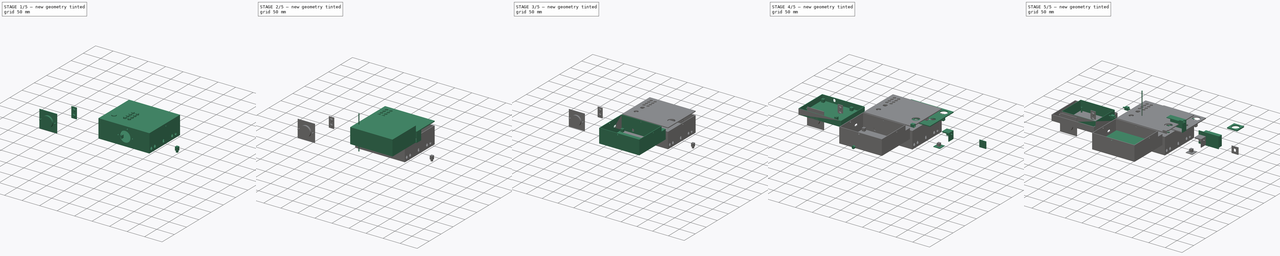
[diagram: build sequence overview — one tinted view per stage of 5, left to right]
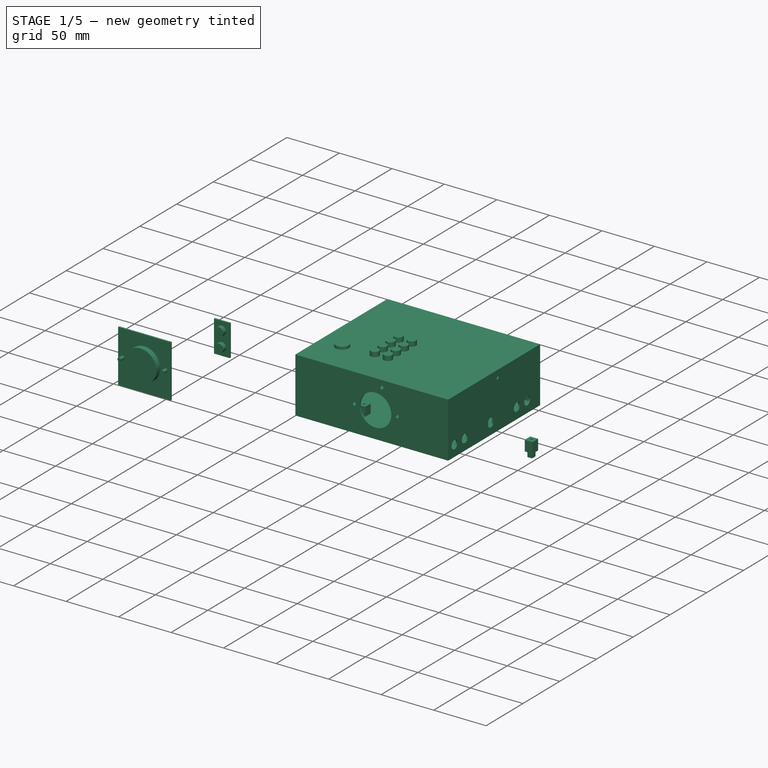
[diagram: stage 1 of 5 — iso view after this stage's code; geometry added in this stage tinted green]
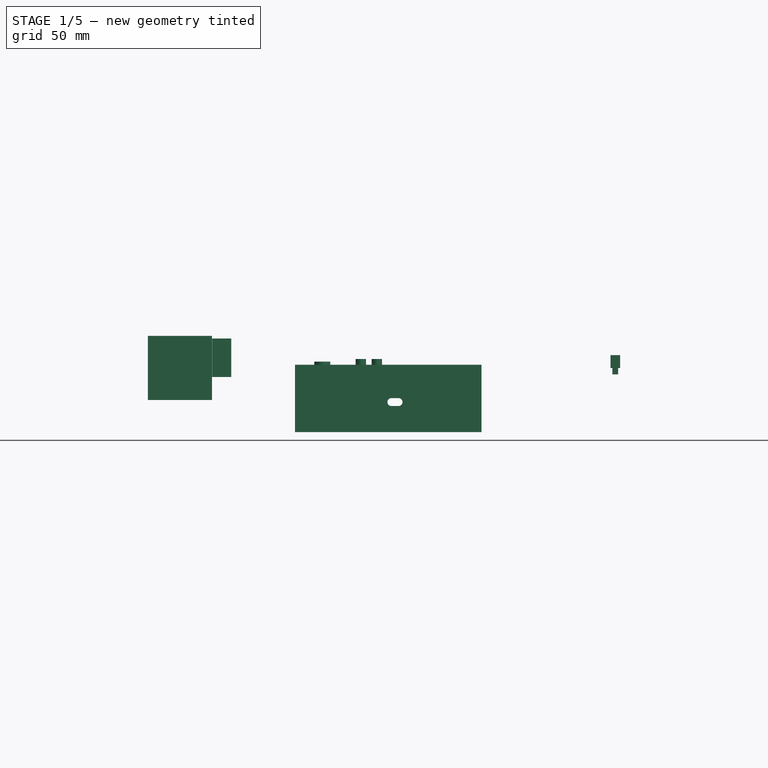
[diagram: stage 1 of 5 — front view after this stage's code; geometry added in this stage tinted green]
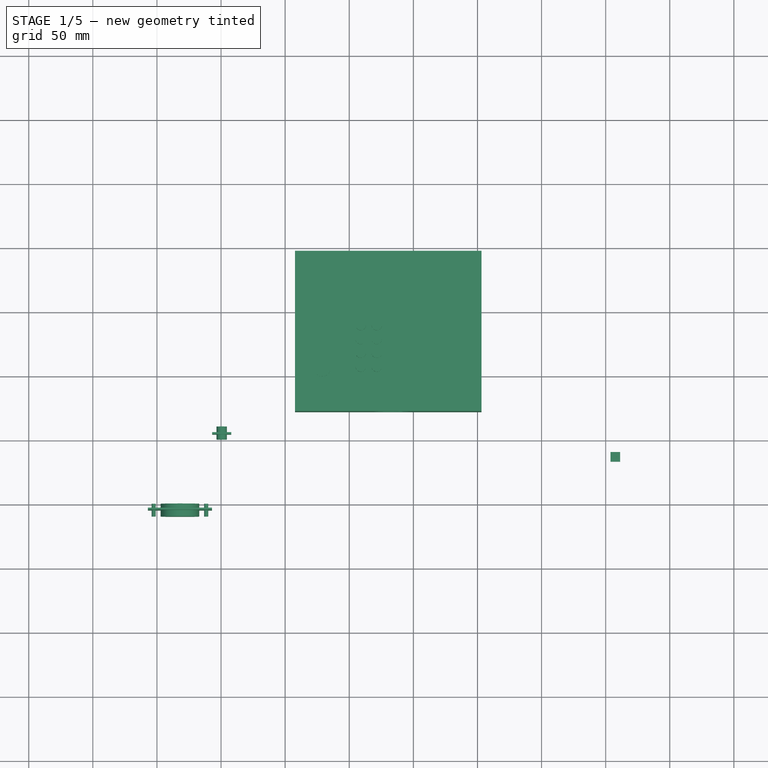
[diagram: stage 1 of 5 — top view after this stage's code; geometry added in this stage tinted green]
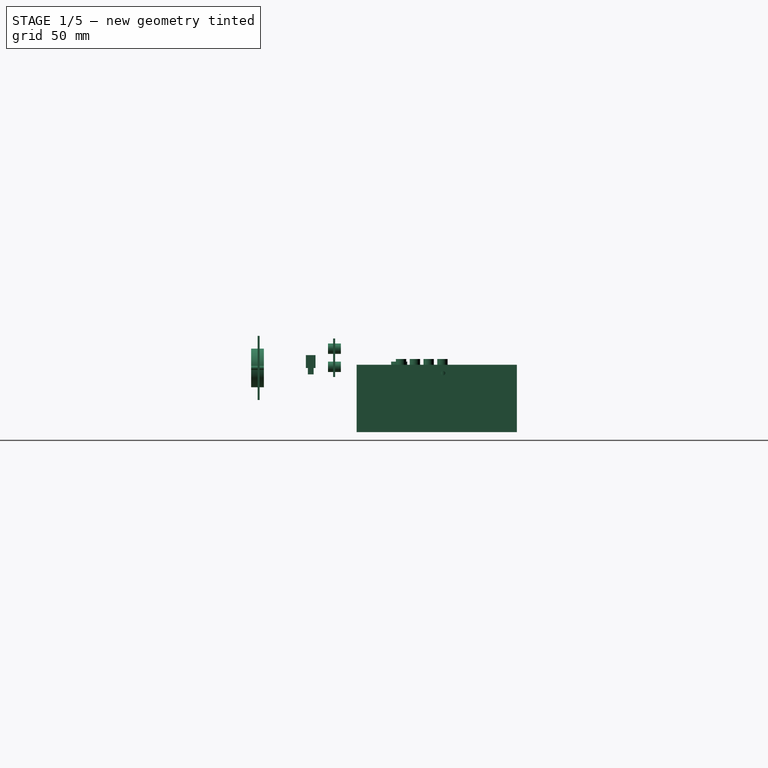
[diagram: stage 1 of 5 — right view after this stage's code; geometry added in this stage tinted green]
FCSTD DOCUMENT  (FreeCAD 0.19R24291 (Git))
Label: ControllerAndBase
License: All rights reserved
LicenseURL: http://en.wikipedia.org/wiki/All_rights_reserved
objects: Part::Cylinder×118, Part::Cut×91, Part::Box×73, App::LinkGroup×17, Part::Feature×16, Part::FeaturePython×10, Part::MultiFuse×10, Part::Compound×6, Sketcher::SketchObject×6, Part::Extrusion×6, Part::Fillet×3
note: 339 computed .brp shape members not serialized (recipe doc carries the construction recipe); baked Part::Feature solids carry a one-line shape summary decoded from their .brp

FEATURE [Part::Feature] Fusion006_solid  label="ControllerBox (Solid)"
  Placement = pos=(0,-111,-50) rot=(0,0,1;0rad)
  shape: bbox 127 x 119.7 x 45 mm, 108 faces (baked)
FEATURE [Part::Feature] Cut053_solid004  label="Lid Fastener004"
  Placement = pos=(-152.55,120,-55.5) rot=(0,0,1;0rad)
  shape: bbox 10 x 8 x 8 mm, 14 faces (baked)
FEATURE [Part::Feature] Cut053_solid005  label="Lid Fastener005"
  Placement = pos=(50,-58.4,-55.5) rot=(0,0,1;1.5708rad)
  shape: bbox 8 x 10 x 8 mm, 14 faces (baked)
FEATURE [Part::Feature] Cut053_solid006  label="Lid Fastener006"
  Placement = pos=(20,328,-55.5) rot=(0,0,-1;1.5708rad)
  shape: bbox 8 x 10 x 8 mm, 14 faces (baked)
FEATURE [Part::Feature] Cut053_solid007  label="Lid Fastener007"
  Placement = pos=(213.35,159,-55.5) rot=(0,0,1;3.14159rad)
  shape: bbox 10 x 8 x 8 mm, 14 faces (baked)
FEATURE [Part::Box] Box055  label="Cube055"
  AttacherType = Attacher::AttachEngine3D
  Height = 2.5
  Length = 145.5
  Placement = pos=(-42.35,72.3,0) rot=(0,0,1;0rad)
  Width = 125
FEATURE [Part::Cylinder] Cylinder062  label="UnlockSwitch"
  Angle = 360
  AttacherType = Attacher::AttachEngine3D
  Height = 10
  Placement = pos=(-21.05,105.5,-5) rot=(0,0,1;0rad)
  Radius = 6.25
FEATURE [Part::Cylinder] Cylinder087
  Angle = 360
  AttacherType = Attacher::AttachEngine3D
  Height = 15
  Placement = pos=(9,107,-8) rot=(0,0,1;0rad)
  Radius = 4.05
FEATURE [Part::Cylinder] Cylinder088
  Angle = 360
  AttacherType = Attacher::AttachEngine3D
  Height = 15
  Placement = pos=(9,117.75,-8) rot=(0,0,1;0rad)
  Radius = 4.05
FEATURE [Part::Cylinder] Cylinder089
  Angle = 360
  AttacherType = Attacher::AttachEngine3D
  Height = 15
  Placement = pos=(21.5,117.75,-8) rot=(0,0,1;0rad)
  Radius = 4.05
FEATURE [Part::Cylinder] Cylinder090
  Angle = 360
  AttacherType = Attacher::AttachEngine3D
  Height = 15
  Placement = pos=(9,128.5,-8) rot=(0,0,1;0rad)
  Radius = 4.05
FEATURE [Part::Cylinder] Cylinder091
  Angle = 360
  AttacherType = Attacher::AttachEngine3D
  Height = 15
  Placement = pos=(21.5,139.25,-8) rot=(0,0,1;0rad)
  Radius = 4.05
FEATURE [Part::Cylinder] Cylinder092
  Angle = 360
  AttacherType = Attacher::AttachEngine3D
  Height = 15
  Placement = pos=(9,139.25,-8) rot=(0,0,1;0rad)
  Radius = 4.05
FEATURE [Part::Cylinder] Cylinder093
  Angle = 360
  AttacherType = Attacher::AttachEngine3D
  Height = 15
  Placement = pos=(21.5,107,-8) rot=(0,0,1;0rad)
  Radius = 4.05
FEATURE [Part::Cylinder] Cylinder094
  Angle = 360
  AttacherType = Attacher::AttachEngine3D
  Height = 15
  Placement = pos=(21.5,128.5,-8) rot=(0,0,1;0rad)
  Radius = 4.05
FEATURE [Part::Box] Box062  label="Cube060"
  AttacherType = Attacher::AttachEngine3D
  Height = 50
  Length = 145.5
  Placement = pos=(-42.35,72.3,-50) rot=(0,0,1;0rad)
  Width = 125
FEATURE [Part::Box] Box063  label="Cube061"
  AttacherType = Attacher::AttachEngine3D
  Height = 48.5
  Length = 142.5
  Placement = pos=(-40.85,73.8,-48.5) rot=(0,0,1;0rad)
  Width = 122
FEATURE [Part::Cut] Cut079  label="BaseBoxInitial"
  Base = -> Box062
  Tool = -> Box063
FEATURE [Part::Cylinder] Cylinder111
  Angle = 360
  AttacherType = Attacher::AttachEngine3D
  Height = 10
  Placement = pos=(7.5,16.5,105) rot=(0,0,1;0rad)
  Radius = 1.2
FEATURE [Part::Box] Box064  label="Cube062"
  AttacherType = Attacher::AttachEngine3D
  Height = 10
  Length = 7.5
  Placement = pos=(3.75,12.75,100) rot=(0,0,1;0rad)
  Width = 7.5
FEATURE [Part::Box] Box065  label="Cube063"
  AttacherType = Attacher::AttachEngine3D
  Height = 10
  Length = 4.5
  Placement = pos=(5.25,14.25,98.5) rot=(0,0,1;0rad)
  Width = 4.5
FEATURE [Part::Cut] Cut080
  Base = -> Box064
  Tool = -> Box065
FEATURE [Part::Cut] Cut081  label="PCBMount"
  Base = -> Cut080
  Placement = pos=(200,20,-100) rot=(0,0,1;0rad)
  Tool = -> Cylinder111
FEATURE [Part::Box] Box067  label="PCBMountCutaway"
  AttacherType = Attacher::AttachEngine3D
  Height = 10
  Length = 4.5
  Placement = pos=(205.25,34.25,-5) rot=(0,0,1;0rad)
  Width = 4.5
FEATURE [Part::Feature] Cut081_solid  label="PCBMount (Solid)"
  shape: bbox 7.5 x 7.5 x 10 mm, 12 faces (baked)
FEATURE [Part::Feature] Cut081_solid001  label="PCBMount (Solid)001"
  shape: bbox 7.5 x 7.5 x 10 mm, 12 faces (baked)
FEATURE [Part::Feature] Cut081_solid002  label="PCBMount (Solid)002"
  Placement = pos=(0,-85,0) rot=(0,0,1;0rad)
  shape: bbox 7.5 x 7.5 x 10 mm, 12 faces (baked)
FEATURE [Part::Feature] Cut081_solid003  label="PCBMount (Solid)003"
  Placement = pos=(65,-85,0) rot=(0,0,1;0rad)
  shape: bbox 7.5 x 7.5 x 10 mm, 12 faces (baked)
FEATURE [Part::Feature] Cut081_solid004  label="PCBMount (Solid)004"
  Placement = pos=(65,0,0) rot=(0,0,1;0rad)
  shape: bbox 7.5 x 7.5 x 10 mm, 12 faces (baked)
FEATURE [Part::Box] Box068  label="PCBMountCutaway001"
  AttacherType = Attacher::AttachEngine3D
  Height = 10
  Length = 4.5
  Placement = pos=(205.25,34.25,-5) rot=(0,0,1;0rad)
  Width = 4.5
FEATURE [Part::Box] Box069  label="PCBMountCutaway002"
  AttacherType = Attacher::AttachEngine3D
  Height = 10
  Length = 4.5
  Placement = pos=(270.25,-50.75,-5) rot=(0,0,1;0rad)
  Width = 4.5
FEATURE [Part::Box] Box070  label="PCBMountCutaway003"
  AttacherType = Attacher::AttachEngine3D
  Height = 10
  Length = 4.5
  Placement = pos=(205.25,-50.75,-5) rot=(0,0,1;0rad)
  Width = 4.5
FEATURE [Part::Box] Box071  label="PCBMountCutaway004"
  AttacherType = Attacher::AttachEngine3D
  Height = 10
  Length = 4.5
  Placement = pos=(270.25,34.25,-5) rot=(0,0,1;0rad)
  Width = 4.5
FEATURE [App::LinkGroup] LinkGroup008  label="70x90mmM2Mount"
  ElementList = -> [Cut081_solid001,Cut081_solid002,Cut081_solid003,Cut081_solid004]
  LinkMode = 0
  Placement = pos=(-205.75,151.3,-50) rot=(0,0,1;0rad)
FEATURE [App::LinkGroup] LinkGroup009  label="70x90mmM2MountCutaway"
  ElementList = -> [Box068,Box069,Box070,Box071]
  LinkMode = 0
  Placement = pos=(-205.75,151.3,-50) rot=(0,0,1;0rad)
FEATURE [Part::Cylinder] Cylinder112
  Angle = 360
  AttacherType = Attacher::AttachEngine3D
  Height = 10
  Placement = pos=(-99.5,50,0.95) rot=(-1,0,0;1.5708rad)
  Radius = 4.05
FEATURE [Part::Box] Box072  label="Cube064"
  AttacherType = Attacher::AttachEngine3D
  Height = 30
  Length = 15
  Placement = pos=(-107,54,-7) rot=(0,0,1;0rad)
  Width = 1.5
FEATURE [Part::Cylinder] Cylinder113
  Angle = 360
  AttacherType = Attacher::AttachEngine3D
  Height = 10
  Placement = pos=(-99.5,50,15.05) rot=(-1,0,0;1.5708rad)
  Radius = 4.05
FEATURE [App::LinkGroup] LinkGroup010  label="BananaPlugCutaway"
  ElementList = -> [Cylinder113,Cylinder112]
  LinkMode = 0
FEATURE [Part::Cylinder] Cylinder114
  Angle = 360
  AttacherType = Attacher::AttachEngine3D
  Height = 10
  Placement = pos=(-99.5,50,0.95) rot=(-1,0,0;1.5708rad)
  Radius = 4.05
FEATURE [Part::Cylinder] Cylinder115
  Angle = 360
  AttacherType = Attacher::AttachEngine3D
  Height = 10
  Placement = pos=(-99.5,50,15.05) rot=(-1,0,0;1.5708rad)
  Radius = 4.05
FEATURE [App::LinkGroup] LinkGroup011  label="BananaPlugCutaway001"
  ElementList = -> [Cylinder115,Cylinder114]
  LinkMode = 0
FEATURE [Part::Cut] Cut082  label="BananaClipTest"
  Base = -> Box072
  Tool = -> LinkGroup011
FEATURE [Part::Cylinder] Cylinder116
  Angle = 360
  AttacherType = Attacher::AttachEngine3D
  Height = 10
  Placement = pos=(-132.05,0,0) rot=(1,0,0;1.5708rad)
  Radius = 15.05
FEATURE [Part::Box] Box073  label="Cube065"
  AttacherType = Attacher::AttachEngine3D
  Height = 50
  Length = 50
  Placement = pos=(-157.05,-4.9,-25) rot=(0,0,1;0rad)
  Width = 1.5
FEATURE [Part::Cylinder] Cylinder117
  Angle = 360
  AttacherType = Attacher::AttachEngine3D
  Height = 10
  Placement = pos=(-152.5,0,0) rot=(1,0,0;1.5708rad)
  Radius = 1.6
FEATURE [Part::Cylinder] Cylinder118
  Angle = 360
  AttacherType = Attacher::AttachEngine3D
  Height = 10
  Placement = pos=(-111.6,0,0) rot=(1,0,0;1.5708rad)
  Radius = 1.6
FEATURE [App::LinkGroup] LinkGroup012  label="BuzzerCutaway"
  ElementList = -> [Cylinder116,Cylinder117,Cylinder118]
  LinkMode = 0
FEATURE [Part::Cylinder] Cylinder119
  Angle = 360
  AttacherType = Attacher::AttachEngine3D
  Height = 10
  Placement = pos=(-111.6,0,0) rot=(1,0,0;1.5708rad)
  Radius = 1.6
FEATURE [Part::Cylinder] Cylinder120
  Angle = 360
  AttacherType = Attacher::AttachEngine3D
  Height = 10
  Placement = pos=(-132.05,0,0) rot=(1,0,0;1.5708rad)
  Radius = 15.05
FEATURE [Part::Cylinder] Cylinder121
  Angle = 360
  AttacherType = Attacher::AttachEngine3D
  Height = 10
  Placement = pos=(-152.5,0,0) rot=(1,0,0;1.5708rad)
  Radius = 1.6
FEATURE [App::LinkGroup] LinkGroup013  label="BuzzerCutaway001"
  ElementList = -> [Cylinder120,Cylinder121,Cylinder119]
  LinkMode = 0
FEATURE [Part::Cut] Cut083  label="BuzzerMountTest"
  Base = -> Box073
  Tool = -> LinkGroup013
FEATURE [Part::Cylinder] Cylinder122
  Angle = 360
  AttacherType = Attacher::AttachEngine3D
  Height = 10
  Placement = pos=(-99.5,50,0.95) rot=(-1,0,0;1.5708rad)
  Radius = 4.05
FEATURE [Part::Cylinder] Cylinder123
  Angle = 360
  AttacherType = Attacher::AttachEngine3D
  Height = 10
  Placement = pos=(-99.5,50,15.05) rot=(-1,0,0;1.5708rad)
  Radius = 4.05
FEATURE [App::LinkGroup] LinkGroup014  label="BananaPlugCutawayRight"
  ElementList = -> [Cylinder123,Cylinder122]
  LinkMode = 0
  Placement = pos=(46.5105,164.7,60.0496) rot=(0.57735,0.57735,0.57735;4.18879rad)
FEATURE [Part::Box] Box074  label="Cube066"
  AttacherType = Attacher::AttachEngine3D
  Height = 10
  Length = 10
  Placement = pos=(53.5,-105,4) rot=(0,0,1;0rad)
  Width = 10
FEATURE [Part::Cylinder] Cylinder124
  Angle = 360
  AttacherType = Attacher::AttachEngine3D
  Height = 5
  Placement = pos=(50,-100,9) rot=(1,0,0;1.5708rad)
  Radius = 4.3
FEATURE [Part::Box] Box075  label="Cube067"
  AttacherType = Attacher::AttachEngine3D
  Height = 10
  Length = 10
  Placement = pos=(36.5,-105,4) rot=(0,0,1;0rad)
  Width = 10
FEATURE [Part::Cut] Cut084
  Base = -> Cylinder124
  Tool = -> Box075
FEATURE [Part::Cut] Cut085  label="PowerConnectorCutaway"
  Base = -> Cut084
  Placement = pos=(205,180.3,-48.2) rot=(0,0,-1;1.5708rad)
  Tool = -> Box074
FEATURE [Part::Cylinder] Cylinder125
  Angle = 360
  AttacherType = Attacher::AttachEngine3D
  Height = 10
  Placement = pos=(-99.5,50,0.95) rot=(-1,0,0;1.5708rad)
  Radius = 4.05
FEATURE [Part::Cylinder] Cylinder126
  Angle = 360
  AttacherType = Attacher::AttachEngine3D
  Height = 10
  Placement = pos=(-99.5,50,15.05) rot=(-1,0,0;1.5708rad)
  Radius = 4.05
FEATURE [App::LinkGroup] LinkGroup015  label="BananaPlugCutawayLeft"
  ElementList = -> [Cylinder126,Cylinder125]
  LinkMode = 0
  Placement = pos=(46.5104,79.8999,60.0496) rot=(0.57735,0.57735,0.57735;4.18879rad)
FEATURE [Part::Cylinder] Cylinder127
  Angle = 360
  AttacherType = Attacher::AttachEngine3D
  Height = 10
  Placement = pos=(-132.05,0,0) rot=(1,0,0;1.5708rad)
  Radius = 15.05
FEATURE [Part::Cylinder] Cylinder128
  Angle = 360
  AttacherType = Attacher::AttachEngine3D
  Height = 10
  Placement = pos=(-152.5,0,0) rot=(1,0,0;1.5708rad)
  Radius = 1.6
FEATURE [Part::Cylinder] Cylinder129
  Angle = 360
  AttacherType = Attacher::AttachEngine3D
  Height = 10
  Placement = pos=(-111.6,0,0) rot=(1,0,0;1.5708rad)
  Radius = 1.6
FEATURE [App::LinkGroup] LinkGroup016  label="BaseBuzzerCutaway"
  ElementList = -> [Cylinder127,Cylinder128,Cylinder129]
  LinkMode = 0
  Placement = pos=(166,78,-25) rot=(0,0,1;0rad)
FEATURE [Part::Box] Box076  label="Cube068"
  AttacherType = Attacher::AttachEngine3D
  Height = 6.2
  Length = 10
  Placement = pos=(0,-50,10.3) rot=(0,0,1;0rad)
  Width = 11.7
FEATURE [Part::Fillet] Fillet002  label="ProgrammingCutaway"
  Base = -> Box076
  Edges = 4 edges r=3.05: [Edge9,Edge10,Edge11,Edge12]
  Placement = pos=(-8.5,192,-40) rot=(0,0,1;1.5708rad)
FEATURE [Part::Cylinder] Cylinder130
  Angle = 360
  AttacherType = Attacher::AttachEngine3D
  Height = 10
  Placement = pos=(39.74,70.64,-4) rot=(0.57735,0.57735,0.57735;4.18879rad)
  Radius = 1.7
FEATURE [Part::Cylinder] Cylinder131
  Angle = 360
  AttacherType = Attacher::AttachEngine3D
  Height = 10
  Placement = pos=(30.26,190.64,-4) rot=(0.57735,0.57735,0.57735;4.18879rad)
  Radius = 1.7
FEATURE [Part::Cylinder] Cylinder132
  Angle = 360
  AttacherType = Attacher::AttachEngine3D
  Height = 10
  Placement = pos=(97.26,139.74,-4) rot=(0.707107,0,0.707107;3.14159rad)
  Radius = 1.7
FEATURE [Part::Cylinder] Cylinder133
  Angle = 360
  AttacherType = Attacher::AttachEngine3D
  Height = 10
  Placement = pos=(-48.74,139.26,-4) rot=(0.707107,0,0.707107;3.14159rad)
  Radius = 1.7
FEATURE [App::LinkGroup] LinkGroup018  label="BaseFastenerCutaway"
  ElementList = -> [Cylinder130,Cylinder131,Cylinder132,Cylinder133]
  LinkMode = 0
FEATURE [Part::Cut] Cut086
  Base = -> Cut079
  Tool = -> LinkGroup009
FEATURE [Part::Cut] Cut087
  Base = -> Cut086
  Tool = -> LinkGroup014
FEATURE [Part::Cut] Cut088
  Base = -> Cut087
  Tool = -> LinkGroup015
FEATURE [Part::Cut] Cut089
  Base = -> Cut088
  Tool = -> Cut085
FEATURE [Part::Cut] Cut090
  Base = -> Cut089
  Tool = -> LinkGroup016
FEATURE [Part::Cut] Cut091
  Base = -> Cut090
  Tool = -> Fillet002
FEATURE [Part::Cut] Cut092
  Base = -> Cut091
  Tool = -> LinkGroup018
FEATURE [Part::MultiFuse] Fusion011  label="BaseBox"
  Shapes = -> [LinkGroup008,Cut092]
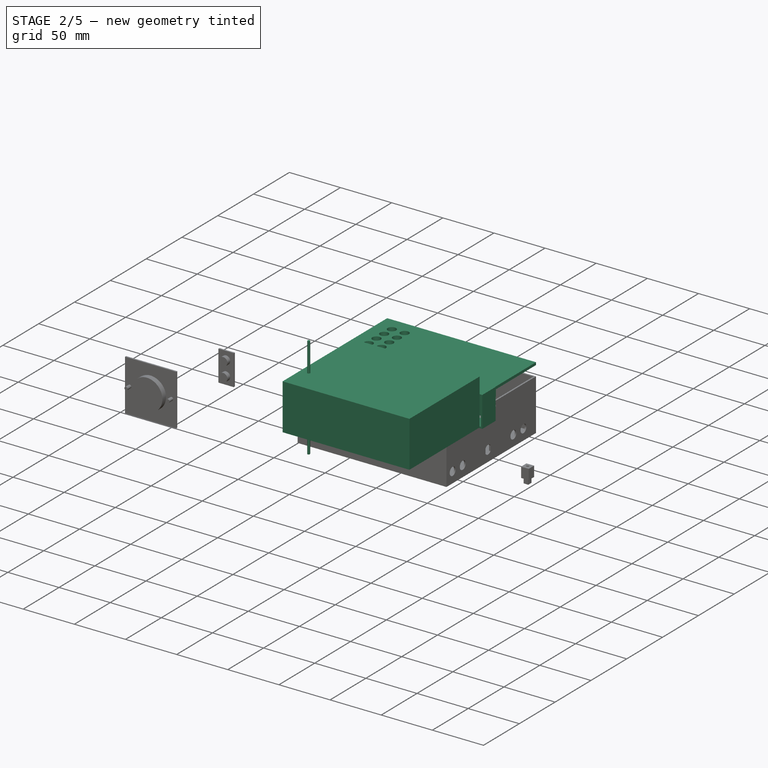
[diagram: stage 2 of 5 — iso view after this stage's code; geometry added in this stage tinted green]
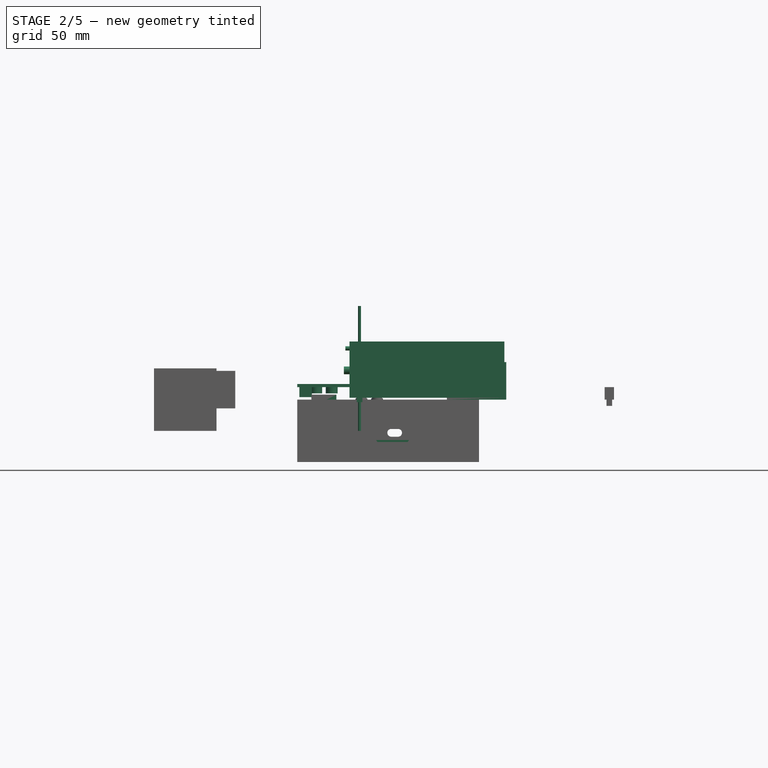
[diagram: stage 2 of 5 — front view after this stage's code; geometry added in this stage tinted green]
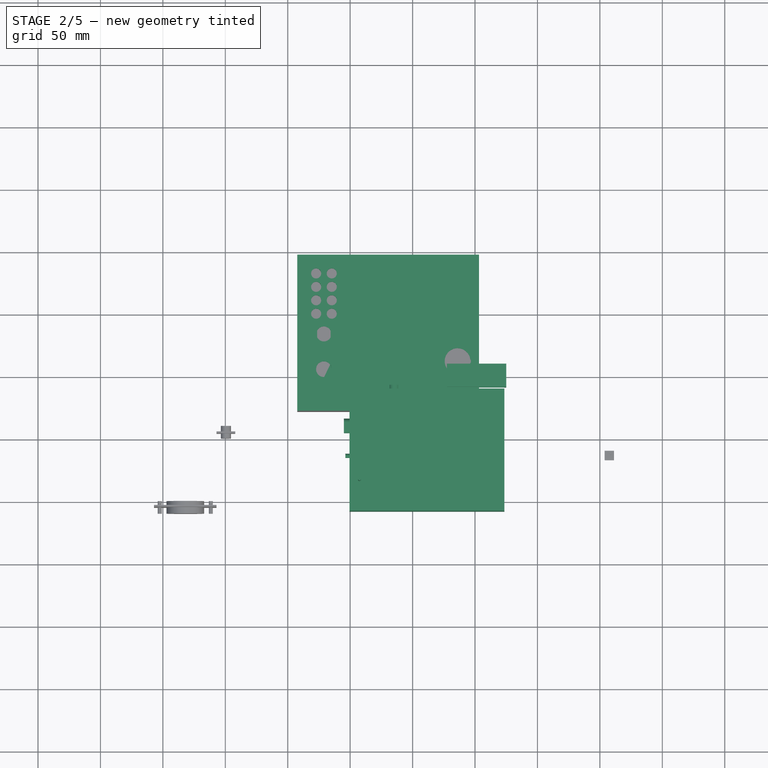
[diagram: stage 2 of 5 — top view after this stage's code; geometry added in this stage tinted green]
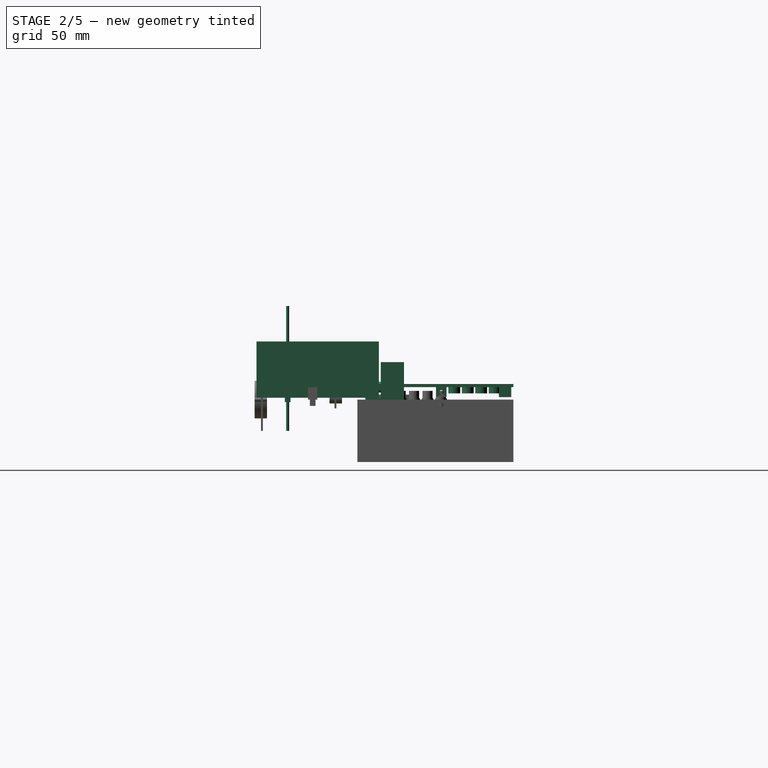
[diagram: stage 2 of 5 — right view after this stage's code; geometry added in this stage tinted green]
FEATURE [Part::Box] Box010  label="Cube010"
  AttacherType = Attacher::AttachEngine3D
  Height = 45
  Length = 124
  Placement = pos=(-0.5,-8.5,1.5) rot=(0,0,1;0rad)
  Width = 98
FEATURE [Part::Cylinder] Cylinder015
  Angle = 360
  AttacherType = Attacher::AttachEngine3D
  Height = 100
  Placement = pos=(7.5,16.5,-25) rot=(0,0,1;0rad)
  Radius = 1.2
FEATURE [Part::Box] Box020  label="Cube020"
  AttacherType = Attacher::AttachEngine3D
  Height = 10
  Length = 4.5
  Placement = pos=(5.25,14.25,-2) rot=(0,0,1;0rad)
  Width = 4.5
FEATURE [Part::Cylinder] Cylinder023
  Angle = 360
  AttacherType = Attacher::AttachEngine3D
  Height = 5
  Placement = pos=(50,-100,9) rot=(1,0,0;1.5708rad)
  Radius = 4.3
FEATURE [Part::Box] Box024  label="Cube024"
  AttacherType = Attacher::AttachEngine3D
  Height = 10
  Length = 10
  Placement = pos=(53.5,-105,4) rot=(0,0,1;0rad)
  Width = 10
FEATURE [Part::Box] Box025  label="Cube025"
  AttacherType = Attacher::AttachEngine3D
  Height = 10
  Length = 10
  Placement = pos=(36.5,-105,4) rot=(0,0,1;0rad)
  Width = 10
FEATURE [Part::Cut] Cut033
  Base = -> Cylinder023
  Tool = -> Box025
FEATURE [Part::Cut] Cut034
  Base = -> Cut033
  Placement = pos=(-15,193,1) rot=(0,0,1;0rad)
  Tool = -> Box024
FEATURE [Part::Cylinder] Cylinder035
  Angle = 360
  AttacherType = Attacher::AttachEngine3D
  Height = 10
  Placement = pos=(6.21,35.56,41) rot=(0,-1,0;1.5708rad)
  Radius = 1.7
FEATURE [Part::Box] Box050  label="Cube050"
  AttacherType = Attacher::AttachEngine3D
  Height = 30
  Length = 47.5
  Placement = pos=(0,0,58.5) rot=(0,0,1;0rad)
  Width = 18.7
FEATURE [Part::Box] Box051  label="Cube051"
  AttacherType = Attacher::AttachEngine3D
  Height = 27
  Length = 47.5
  Placement = pos=(-1.5,0,60) rot=(0,0,1;0rad)
  Width = 17.2
FEATURE [Part::Cut] Cut062
  Base = -> Box050
  Placement = pos=(77.5,91,-58.5) rot=(0,0,1;0rad)
  Tool = -> Box051
FEATURE [Part::Box] Box053  label="Cube053"
  AttacherType = Attacher::AttachEngine3D
  Height = 6.2
  Length = 10
  Placement = pos=(0,-50,10.3) rot=(0,0,1;0rad)
  Width = 11.7
FEATURE [Part::Fillet] Fillet001
  Base = -> Box053
  Edges = 4 edges r=3.05: [Edge9,Edge10,Edge11,Edge12]
  Placement = pos=(-5,104,10) rot=(0,0,1;0rad)
FEATURE [Part::Box] Box054  label="Cube054"
  AttacherType = Attacher::AttachEngine3D
  Height = 2
  Length = 2
  Placement = pos=(77.5,107.7,14) rot=(0,0,1;0rad)
  Width = 2
FEATURE [Part::MultiFuse] Fusion004  label="BatteryHolder"
  Shapes = -> [Cut062,Box054]
FEATURE [Part::Cylinder] Cylinder061  label="UnlockKey"
  Angle = 360
  AttacherType = Attacher::AttachEngine3D
  Height = 10
  Placement = pos=(139.86,111.25,-5) rot=(0,0,1;0rad)
  Radius = 6
FEATURE [Part::Cylinder] Cylinder064
  Angle = 360
  AttacherType = Attacher::AttachEngine3D
  Height = 10
  Placement = pos=(85,165,-5) rot=(0,0,1;0rad)
  Radius = 10.3
FEATURE [Part::Box] Box057  label="Cube056"
  AttacherType = Attacher::AttachEngine3D
  Height = 10
  Length = 10
  Placement = pos=(85.7,163.75,-5) rot=(0,0,1;0rad)
  Width = 2.5
FEATURE [Part::MultiFuse] Fusion009  label="PowerSw002"
  Placement = pos=(6.5,15,0) rot=(0,0,1;0rad)
  Shapes = -> [Cylinder064,Box057]
FEATURE [Part::Cylinder] Cylinder065
  Angle = 360
  AttacherType = Attacher::AttachEngine3D
  Height = 15
  Placement = pos=(9,107,-8) rot=(0,0,1;0rad)
  Radius = 4.05
FEATURE [Part::Cylinder] Cylinder066
  Angle = 360
  AttacherType = Attacher::AttachEngine3D
  Height = 15
  Placement = pos=(9,117.75,-8) rot=(0,0,1;0rad)
  Radius = 4.05
FEATURE [Part::Cylinder] Cylinder067
  Angle = 360
  AttacherType = Attacher::AttachEngine3D
  Height = 15
  Placement = pos=(21.5,117.75,-8) rot=(0,0,1;0rad)
  Radius = 4.05
FEATURE [Part::Cylinder] Cylinder068
  Angle = 360
  AttacherType = Attacher::AttachEngine3D
  Height = 15
  Placement = pos=(9,128.5,-8) rot=(0,0,1;0rad)
  Radius = 4.05
FEATURE [Part::Cylinder] Cylinder069
  Angle = 360
  AttacherType = Attacher::AttachEngine3D
  Height = 15
  Placement = pos=(21.5,139.25,-8) rot=(0,0,1;0rad)
  Radius = 4.05
FEATURE [Part::Cylinder] Cylinder070
  Angle = 360
  AttacherType = Attacher::AttachEngine3D
  Height = 15
  Placement = pos=(9,139.25,-8) rot=(0,0,1;0rad)
  Radius = 4.05
FEATURE [Part::Cylinder] Cylinder071
  Angle = 360
  AttacherType = Attacher::AttachEngine3D
  Height = 15
  Placement = pos=(21.5,107,-8) rot=(0,0,1;0rad)
  Radius = 4.05
FEATURE [Part::Cylinder] Cylinder086
  Angle = 360
  AttacherType = Attacher::AttachEngine3D
  Height = 15
  Placement = pos=(21.5,128.5,-8) rot=(0,0,1;0rad)
  Radius = 4.05
FEATURE [Part::Cylinder] Cylinder078
  Angle = 360
  AttacherType = Attacher::AttachEngine3D
  Height = 6
  Placement = pos=(9,107,-5) rot=(0,0,1;0rad)
  Radius = 4.75
FEATURE [Part::Cylinder] Cylinder080
  Angle = 360
  AttacherType = Attacher::AttachEngine3D
  Height = 6
  Placement = pos=(21.5,107,-5) rot=(0,0,1;0rad)
  Radius = 4.75
FEATURE [Part::Cylinder] Cylinder083
  Angle = 360
  AttacherType = Attacher::AttachEngine3D
  Height = 6
  Placement = pos=(9,128.5,-5) rot=(0,0,1;0rad)
  Radius = 4.75
FEATURE [Part::Cylinder] Cylinder084
  Angle = 360
  AttacherType = Attacher::AttachEngine3D
  Height = 6
  Placement = pos=(21.5,128.5,-5) rot=(0,0,1;0rad)
  Radius = 4.75
FEATURE [Part::Cylinder] Cylinder085
  Angle = 360
  AttacherType = Attacher::AttachEngine3D
  Height = 6
  Placement = pos=(21.5,139.25,-5) rot=(0,0,1;0rad)
  Radius = 4.75
FEATURE [Part::Cylinder] Cylinder082
  Angle = 360
  AttacherType = Attacher::AttachEngine3D
  Height = 6
  Placement = pos=(9,139.25,-5) rot=(0,0,1;0rad)
  Radius = 4.75
FEATURE [Part::Cylinder] Cylinder081
  Angle = 360
  AttacherType = Attacher::AttachEngine3D
  Height = 6
  Placement = pos=(21.5,117.75,-5) rot=(0,0,1;0rad)
  Radius = 4.75
FEATURE [Part::Cylinder] Cylinder079
  Angle = 360
  AttacherType = Attacher::AttachEngine3D
  Height = 6
  Placement = pos=(9,117.75,-5) rot=(0,0,1;0rad)
  Radius = 4.75
FEATURE [Part::Box] Box058  label="Cube057"
  AttacherType = Attacher::AttachEngine3D
  Height = 10
  Length = 2
  Placement = pos=(145.25,105.25,-5) rot=(0,0,1;0rad)
  Width = 12
FEATURE [Part::Box] Box059  label="Cube058"
  AttacherType = Attacher::AttachEngine3D
  Height = 10
  Length = 2
  Placement = pos=(132.5,105.25,-5) rot=(0,0,1;0rad)
  Width = 12
FEATURE [Part::Cut] Cut072
  Base = -> Cylinder061
  Tool = -> Box059
FEATURE [Part::Cut] Cut073  label="KeyHole"
  Base = -> Cut072
  Tool = -> Box058
FEATURE [App::LinkGroup] LinkGroup002
  ElementList = -> [Cut073]
  LinkMode = 0
  Placement = pos=(-160.92,22.5,0) rot=(0,0,1;0rad)
FEATURE [Part::Box] Box060  label="Card001"
  AttacherType = Attacher::AttachEngine3D
  Height = 1.6
  Length = 70
  Placement = pos=(-0.75,100.3,-33.9) rot=(0,0,1;0rad)
  Width = 90
FEATURE [App::LinkGroup] LinkGroup003
  ElementList = -> [Cylinder065,Cylinder066,Cylinder067,Cylinder068,Cylinder069,Cylinder070,Cylinder071,Cylinder078,Cylinder079,Cylinder080,Cylinder081,Cylinder082,Cylinder083,Cylinder084,Cylinder085,Cylinder086]
  LinkMode = 0
  Placement = pos=(-36.3,43,0) rot=(0,0,1;0rad)
FEATURE [App::LinkGroup] LinkGroup004
  ElementList = -> [Fusion009]
  LinkMode = 0
  Placement = pos=(-5.50001,-68,0) rot=(0,0,1;0rad)
FEATURE [Part::Box] Box061  label="Cube059"
  AttacherType = Attacher::AttachEngine3D
  Height = 10
  Length = 20
  Placement = pos=(-31.05,78.75,-6) rot=(0,0,1;0rad)
  Width = 40.5
FEATURE [Part::Cut] Cut074
  Base = -> Box055
  Tool = -> Cylinder062
FEATURE [Part::Cut] Cut075
  Base = -> Cut074
  Tool = -> LinkGroup002
FEATURE [App::LinkGroup] LinkGroup
  ElementList = -> [Cylinder087,Cylinder088,Cylinder089,Cylinder090,Cylinder091,Cylinder092,Cylinder093,Cylinder094]
  LinkMode = 0
  Placement = pos=(-36.25,43,0) rot=(0,0,1;0rad)
FEATURE [Part::Cylinder] Cylinder095
  Angle = 360
  AttacherType = Attacher::AttachEngine3D
  Height = 6
  Placement = pos=(9,107,-5) rot=(0,0,1;0rad)
  Radius = 4.75
FEATURE [Part::Cylinder] Cylinder096
  Angle = 360
  AttacherType = Attacher::AttachEngine3D
  Height = 6
  Placement = pos=(9,117.75,-5) rot=(0,0,1;0rad)
  Radius = 4.75
FEATURE [Part::Cylinder] Cylinder097
  Angle = 360
  AttacherType = Attacher::AttachEngine3D
  Height = 6
  Placement = pos=(21.5,107,-5) rot=(0,0,1;0rad)
  Radius = 4.75
FEATURE [Part::Cylinder] Cylinder098
  Angle = 360
  AttacherType = Attacher::AttachEngine3D
  Height = 6
  Placement = pos=(21.5,117.75,-5) rot=(0,0,1;0rad)
  Radius = 4.75
FEATURE [Part::Cylinder] Cylinder099
  Angle = 360
  AttacherType = Attacher::AttachEngine3D
  Height = 6
  Placement = pos=(9,139.25,-5) rot=(0,0,1;0rad)
  Radius = 4.75
FEATURE [Part::Cylinder] Cylinder100
  Angle = 360
  AttacherType = Attacher::AttachEngine3D
  Height = 6
  Placement = pos=(9,128.5,-5) rot=(0,0,1;0rad)
  Radius = 4.75
FEATURE [Part::Cylinder] Cylinder101
  Angle = 360
  AttacherType = Attacher::AttachEngine3D
  Height = 6
  Placement = pos=(21.5,128.5,-5) rot=(0,0,1;0rad)
  Radius = 4.75
FEATURE [Part::Cylinder] Cylinder102
  Angle = 360
  AttacherType = Attacher::AttachEngine3D
  Height = 6
  Placement = pos=(21.5,139.25,-5) rot=(0,0,1;0rad)
  Radius = 4.75
FEATURE [App::LinkGroup] LinkGroup005
  ElementList = -> [Cylinder095,Cylinder096,Cylinder097,Cylinder098,Cylinder099,Cylinder100,Cylinder101,Cylinder102]
  LinkMode = 0
  Placement = pos=(-36.25,43.0001,0) rot=(0,0,1;0rad)
FEATURE [Part::Cut] Cut076  label="LidBase001"
  Base = -> Cut075
  Tool = -> LinkGroup
FEATURE [Part::Cylinder] Cylinder103
  Angle = 360
  AttacherType = Attacher::AttachEngine3D
  Height = 15
  Placement = pos=(9,107,-8) rot=(0,0,1;0rad)
  Radius = 4.05
FEATURE [Part::Cylinder] Cylinder104
  Angle = 360
  AttacherType = Attacher::AttachEngine3D
  Height = 15
  Placement = pos=(9,117.75,-8) rot=(0,0,1;0rad)
  Radius = 4.05
FEATURE [Part::Cylinder] Cylinder105
  Angle = 360
  AttacherType = Attacher::AttachEngine3D
  Height = 15
  Placement = pos=(9,128.5,-8) rot=(0,0,1;0rad)
  Radius = 4.05
FEATURE [Part::Cylinder] Cylinder106
  Angle = 360
  AttacherType = Attacher::AttachEngine3D
  Height = 15
  Placement = pos=(21.5,117.75,-8) rot=(0,0,1;0rad)
  Radius = 4.05
FEATURE [Part::Cylinder] Cylinder107
  Angle = 360
  AttacherType = Attacher::AttachEngine3D
  Height = 15
  Placement = pos=(21.5,139.25,-8) rot=(0,0,1;0rad)
  Radius = 4.05
FEATURE [Part::Cylinder] Cylinder108
  Angle = 360
  AttacherType = Attacher::AttachEngine3D
  Height = 15
  Placement = pos=(21.5,128.5,-8) rot=(0,0,1;0rad)
  Radius = 4.05
FEATURE [Part::Cylinder] Cylinder109
  Angle = 360
  AttacherType = Attacher::AttachEngine3D
  Height = 15
  Placement = pos=(21.5,107,-8) rot=(0,0,1;0rad)
  Radius = 4.05
FEATURE [Part::Cylinder] Cylinder110
  Angle = 360
  AttacherType = Attacher::AttachEngine3D
  Height = 15
  Placement = pos=(9,139.25,-8) rot=(0,0,1;0rad)
  Radius = 4.05
FEATURE [App::LinkGroup] LinkGroup006
  ElementList = -> [Cylinder103,Cylinder104,Cylinder106,Cylinder105,Cylinder107,Cylinder110,Cylinder109,Cylinder108]
  LinkMode = 0
  Placement = pos=(-36.25,43,0) rot=(0,0,1;0rad)
FEATURE [Part::Cut] Cut077  label="LEDSupportsBase"
  Base = -> LinkGroup005
  Tool = -> LinkGroup006
FEATURE [App::LinkGroup] LinkGroup007  label="LidFastenersBase"
  ElementList = -> [Cut053_solid004,Cut053_solid005,Cut053_solid006,Cut053_solid007]
  LinkMode = 0
FEATURE [Part::Cut] Cut078
  Base = -> Cut076
  Tool = -> LinkGroup004
FEATURE [Part::MultiFuse] Fusion010  label="BaseLid"
  Placement = pos=(0,0,10) rot=(0,0,1;0rad)
  Shapes = -> [Cut077,LinkGroup007,Cut078]
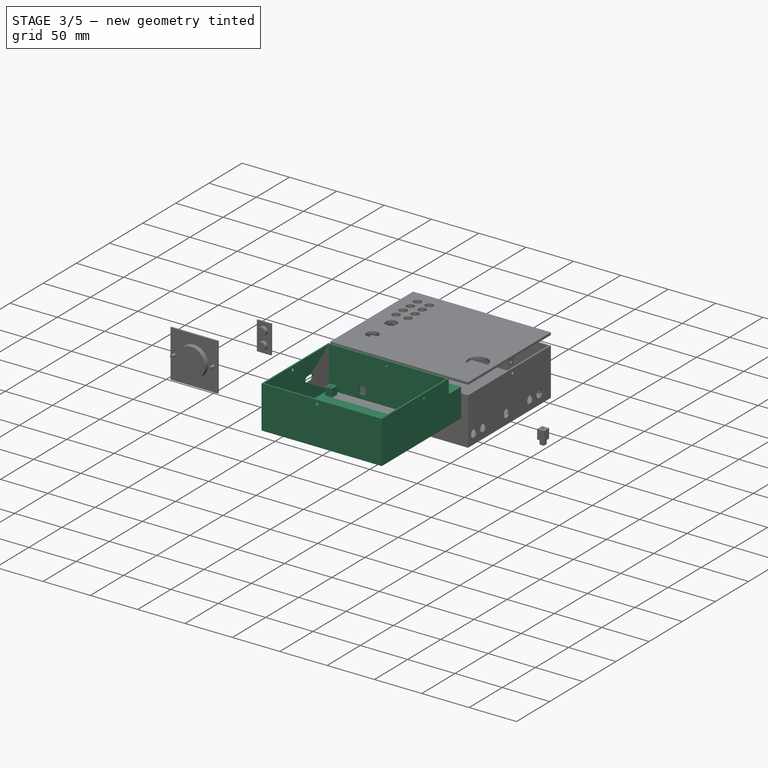
[diagram: stage 3 of 5 — iso view after this stage's code; geometry added in this stage tinted green]
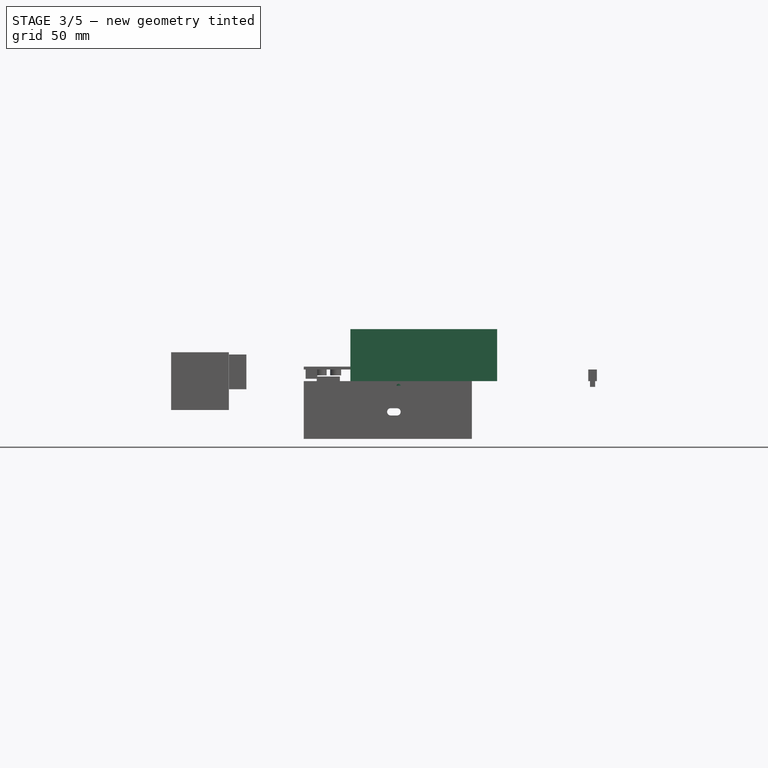
[diagram: stage 3 of 5 — front view after this stage's code; geometry added in this stage tinted green]
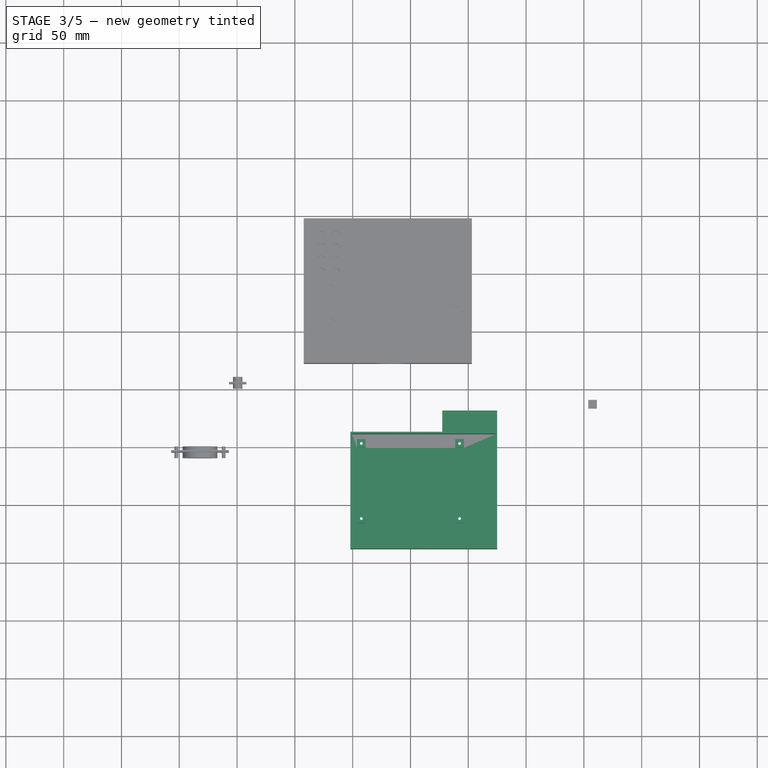
[diagram: stage 3 of 5 — top view after this stage's code; geometry added in this stage tinted green]
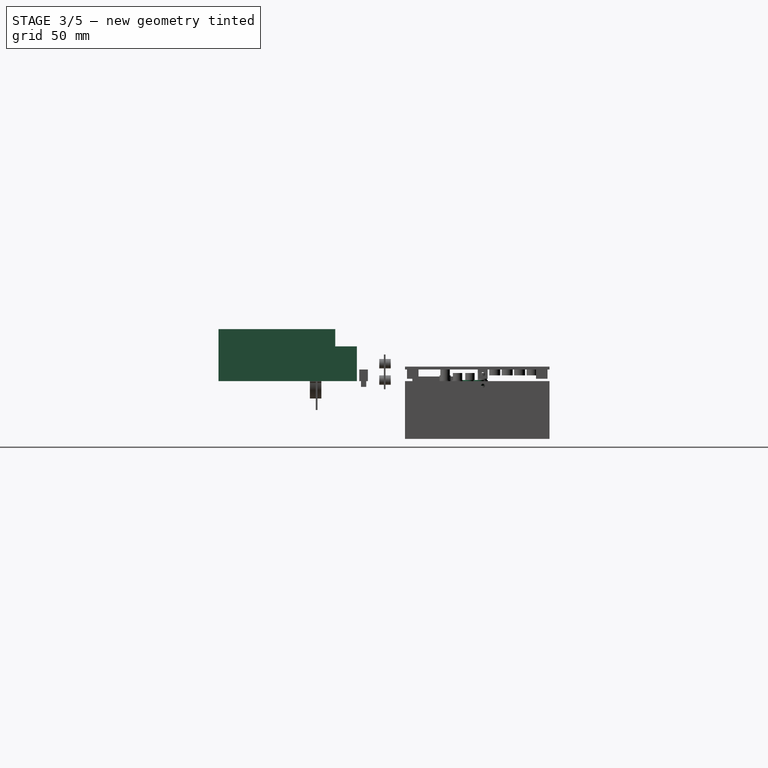
[diagram: stage 3 of 5 — right view after this stage's code; geometry added in this stage tinted green]
FEATURE [Part::Box] Box009  label="Cube009"
  AttacherType = Attacher::AttachEngine3D
  Height = 45
  Length = 127
  Placement = pos=(-2,-10,0) rot=(0,0,1;0rad)
  Width = 101
FEATURE [Part::Cut] Cut006
  Base = -> Box009
  Tool = -> Box010
FEATURE [Part::Cylinder] Cylinder016
  Angle = 360
  AttacherType = Attacher::AttachEngine3D
  Height = 100
  Placement = pos=(92.5,16.5,-25) rot=(0,0,1;0rad)
  Radius = 1.2
FEATURE [Part::Box] Box012  label="Cube012"
  AttacherType = Attacher::AttachEngine3D
  Height = 10
  Length = 7.5
  Placement = pos=(3.75,12.75,100) rot=(0,0,1;0rad)
  Width = 7.5
FEATURE [Part::Box] Box013  label="Cube013"
  AttacherType = Attacher::AttachEngine3D
  Height = 10
  Length = 4.5
  Placement = pos=(5.25,14.25,98.5) rot=(0,0,1;0rad)
  Width = 4.5
FEATURE [Part::Cut] Cut007
  Base = -> Box012
  Tool = -> Box013
FEATURE [Part::Cylinder] Cylinder019
  Angle = 360
  AttacherType = Attacher::AttachEngine3D
  Height = 10
  Placement = pos=(7.5,16.5,105) rot=(0,0,1;0rad)
  Radius = 1.2
FEATURE [Part::Cut] Cut008
  Base = -> Cut007
  Placement = pos=(0,0,-100) rot=(0,0,1;0rad)
  Tool = -> Cylinder019
FEATURE [Part::Cut] Cut009
  Base = -> Cut006
  Tool = -> Cylinder015
FEATURE [Part::Box] Box014  label="Cube014"
  AttacherType = Attacher::AttachEngine3D
  Height = 10
  Length = 7.5
  Placement = pos=(3.75,12.75,100) rot=(0,0,1;0rad)
  Width = 7.5
FEATURE [Part::Cylinder] Cylinder020
  Angle = 360
  AttacherType = Attacher::AttachEngine3D
  Height = 10
  Placement = pos=(7.5,16.5,105) rot=(0,0,1;0rad)
  Radius = 1.2
FEATURE [Part::Box] Box015  label="Cube015"
  AttacherType = Attacher::AttachEngine3D
  Height = 10
  Length = 4.5
  Placement = pos=(5.25,14.25,98.5) rot=(0,0,1;0rad)
  Width = 4.5
FEATURE [Part::Cut] Cut011
  Base = -> Box014
  Tool = -> Box015
FEATURE [Part::Cut] Cut010
  Base = -> Cut011
  Placement = pos=(85,0,-100) rot=(0,0,1;0rad)
  Tool = -> Cylinder020
FEATURE [Part::Box] Box016  label="Cube016"
  AttacherType = Attacher::AttachEngine3D
  Height = 10
  Length = 7.5
  Placement = pos=(3.75,12.75,100) rot=(0,0,1;0rad)
  Width = 7.5
FEATURE [Part::Cylinder] Cylinder021
  Angle = 360
  AttacherType = Attacher::AttachEngine3D
  Height = 10
  Placement = pos=(7.5,16.5,105) rot=(0,0,1;0rad)
  Radius = 1.2
FEATURE [Part::Box] Box017  label="Cube017"
  AttacherType = Attacher::AttachEngine3D
  Height = 10
  Length = 4.5
  Placement = pos=(5.25,14.25,98.5) rot=(0,0,1;0rad)
  Width = 4.5
FEATURE [Part::Cut] Cut012
  Base = -> Box016
  Tool = -> Box017
FEATURE [Part::Cut] Cut013
  Base = -> Cut012
  Placement = pos=(85,65,-100) rot=(0,0,1;0rad)
  Tool = -> Cylinder021
FEATURE [Part::Box] Box018  label="Cube018"
  AttacherType = Attacher::AttachEngine3D
  Height = 10
  Length = 7.5
  Placement = pos=(3.75,12.75,100) rot=(0,0,1;0rad)
  Width = 7.5
FEATURE [Part::Cylinder] Cylinder022
  Angle = 360
  AttacherType = Attacher::AttachEngine3D
  Height = 10
  Placement = pos=(7.5,16.5,105) rot=(0,0,1;0rad)
  Radius = 1.2
FEATURE [Part::Box] Box019  label="Cube019"
  AttacherType = Attacher::AttachEngine3D
  Height = 10
  Length = 4.5
  Placement = pos=(5.25,14.25,98.5) rot=(0,0,1;0rad)
  Width = 4.5
FEATURE [Part::Cut] Cut015
  Base = -> Box018
  Tool = -> Box019
FEATURE [Part::Cut] Cut014
  Base = -> Cut015
  Placement = pos=(0,65,-100) rot=(0,0,1;0rad)
  Tool = -> Cylinder022
FEATURE [Part::Box] Box021  label="Cube021"
  AttacherType = Attacher::AttachEngine3D
  Height = 10
  Length = 4.5
  Placement = pos=(5.25,79.25,-2) rot=(0,0,1;0rad)
  Width = 4.5
FEATURE [Part::Box] Box022  label="Cube022"
  AttacherType = Attacher::AttachEngine3D
  Height = 10
  Length = 4.5
  Placement = pos=(90.25,79.25,-2) rot=(0,0,1;0rad)
  Width = 4.5
FEATURE [Part::Box] Box023  label="Cube023"
  AttacherType = Attacher::AttachEngine3D
  Height = 10
  Length = 4.5
  Placement = pos=(90.25,14.25,-2) rot=(0,0,1;0rad)
  Width = 4.5
FEATURE [Part::Cut] Cut016
  Base = -> Cut009
  Tool = -> Box020
FEATURE [Part::Cut] Cut017
  Base = -> Cut016
  Tool = -> Cylinder016
FEATURE [Part::Cut] Cut018
  Base = -> Cut017
  Tool = -> Box023
FEATURE [Part::Cut] Cut019
  Base = -> Cut018
  Tool = -> Box021
FEATURE [Part::Cut] Cut020
  Base = -> Cut019
  Tool = -> Box022
FEATURE [Part::FeaturePython] Connect  # WARN: FeaturePython — macro-defined, semantics opaque (R4)
  Objects = -> [Cut020,Cut014]
  Tolerance = 0
FEATURE [Part::FeaturePython] Connect001  # WARN: FeaturePython — macro-defined, semantics opaque (R4)
  Objects = -> [Connect,Cut013]
  Tolerance = 0
FEATURE [Part::FeaturePython] Connect002  # WARN: FeaturePython — macro-defined, semantics opaque (R4)
  Objects = -> [Connect001,Cut010]
  Tolerance = 0
FEATURE [Part::FeaturePython] Connect003  # WARN: FeaturePython — macro-defined, semantics opaque (R4)
  Objects = -> [Connect002,Cut008]
  Tolerance = 0
FEATURE [Part::Cut] Cut043
  Base = -> Connect003
  Tool = -> Cut034
FEATURE [Part::Cylinder] Cylinder036
  Angle = 360
  AttacherType = Attacher::AttachEngine3D
  Height = 10
  Placement = pos=(60.26,82.82,41) rot=(0.57735,0.57735,0.57735;4.18879rad)
  Radius = 1.7
FEATURE [Part::Cylinder] Cylinder037
  Angle = 360
  AttacherType = Attacher::AttachEngine3D
  Height = 10
  Placement = pos=(56.29,-11.48,41) rot=(0.57735,0.57735,0.57735;4.18879rad)
  Radius = 1.7
FEATURE [Part::Cylinder] Cylinder038
  Angle = 360
  AttacherType = Attacher::AttachEngine3D
  Height = 10
  Placement = pos=(126.15,53.74,41) rot=(0,-1,0;1.5708rad)
  Radius = 1.7
FEATURE [Part::Cut] Cut058
  Base = -> Cut043
  Tool = -> Cylinder035
FEATURE [Part::Cut] Cut059
  Base = -> Cut058
  Tool = -> Cylinder036
FEATURE [Part::Cut] Cut060
  Base = -> Cut059
  Tool = -> Cylinder037
FEATURE [Part::Cut] Cut061
  Base = -> Cut060
  Tool = -> Cylinder038
FEATURE [Part::Cut] Cut064
  Base = -> Cut061
  Tool = -> Fillet001
FEATURE [Part::Cylinder] Cylinder039
  Angle = 360
  AttacherType = Attacher::AttachEngine3D
  Height = 20
  Placement = pos=(9,107,-8) rot=(0,0,1;0rad)
  Radius = 4.1
FEATURE [Part::Cylinder] Cylinder040
  Angle = 360
  AttacherType = Attacher::AttachEngine3D
  Height = 5
  Placement = pos=(9,107,0) rot=(0,0,1;0rad)
  Radius = 4.8
FEATURE [Part::Cylinder] Cylinder043
  Angle = 360
  AttacherType = Attacher::AttachEngine3D
  Height = 20
  Placement = pos=(9,107,-8) rot=(0,0,1;0rad)
  Radius = 4.1
FEATURE [Part::Cylinder] Cylinder044
  Angle = 360
  AttacherType = Attacher::AttachEngine3D
  Height = 5
  Placement = pos=(9,107,0) rot=(0,0,1;0rad)
  Radius = 4.8
FEATURE [Part::Cylinder] Cylinder045
  Angle = 360
  AttacherType = Attacher::AttachEngine3D
  Height = 20
  Placement = pos=(9,107,-8) rot=(0,0,1;0rad)
  Radius = 4.1
FEATURE [Part::Cylinder] Cylinder046
  Angle = 360
  AttacherType = Attacher::AttachEngine3D
  Height = 5
  Placement = pos=(9,107,0) rot=(0,0,1;0rad)
  Radius = 4.8
FEATURE [Part::Cut] Cut068  label="LEDRing003"
  Base = -> Cylinder046
  Placement = pos=(37.5,20,-4) rot=(0,0,1;0rad)
  Tool = -> Cylinder045
FEATURE [Part::Cylinder] Cylinder047
  Angle = 360
  AttacherType = Attacher::AttachEngine3D
  Height = 20
  Placement = pos=(9,107,-8) rot=(0,0,1;0rad)
  Radius = 4.1
FEATURE [Part::Cylinder] Cylinder048
  Angle = 360
  AttacherType = Attacher::AttachEngine3D
  Height = 5
  Placement = pos=(9,107,0) rot=(0,0,1;0rad)
  Radius = 4.8
FEATURE [Part::Cut] Cut069  label="LEDRing004"
  Base = -> Cylinder048
  Placement = pos=(6.25,29,-4) rot=(0,0,1;0rad)
  Tool = -> Cylinder047
FEATURE [Part::Cylinder] Cylinder049
  Angle = 360
  AttacherType = Attacher::AttachEngine3D
  Height = 20
  Placement = pos=(9,107,-8) rot=(0,0,1;0rad)
  Radius = 4.1
FEATURE [Part::Cylinder] Cylinder050
  Angle = 360
  AttacherType = Attacher::AttachEngine3D
  Height = 5
  Placement = pos=(9,107,0) rot=(0,0,1;0rad)
  Radius = 4.8
FEATURE [Part::Cut] Cut070  label="LEDRing005"
  Base = -> Cylinder050
  Placement = pos=(18.75,29,-4) rot=(0,0,1;0rad)
  Tool = -> Cylinder049
FEATURE [Part::Cylinder] Cylinder051
  Angle = 360
  AttacherType = Attacher::AttachEngine3D
  Height = 20
  Placement = pos=(9,107,-8) rot=(0,0,1;0rad)
  Radius = 4.1
FEATURE [Part::Cylinder] Cylinder052
  Angle = 360
  AttacherType = Attacher::AttachEngine3D
  Height = 5
  Placement = pos=(9,107,0) rot=(0,0,1;0rad)
  Radius = 4.8
FEATURE [Part::Cut] Cut071  label="LEDRing006"
  Base = -> Cylinder052
  Placement = pos=(31.25,29,-4) rot=(0,0,1;0rad)
  Tool = -> Cylinder051
FEATURE [Part::Cut] Cut065  label="LEDRing"
  Base = -> Cylinder040
  Placement = pos=(0,20,-4) rot=(0,0,1;0rad)
  Tool = -> Cylinder039
FEATURE [Part::Feature] Fusion005_solid  label="ControllerLid (Solid)"
  Placement = pos=(0,-237,4) rot=(0,0,1;0rad)
  shape: bbox 127 x 101 x 10.5 mm, 104 faces (baked)
FEATURE [Part::MultiFuse] Fusion006  label="ControlBox"
  Placement = pos=(0,-79,0) rot=(0,0,1;0rad)
  Shapes = -> [Cut064,Fusion004]
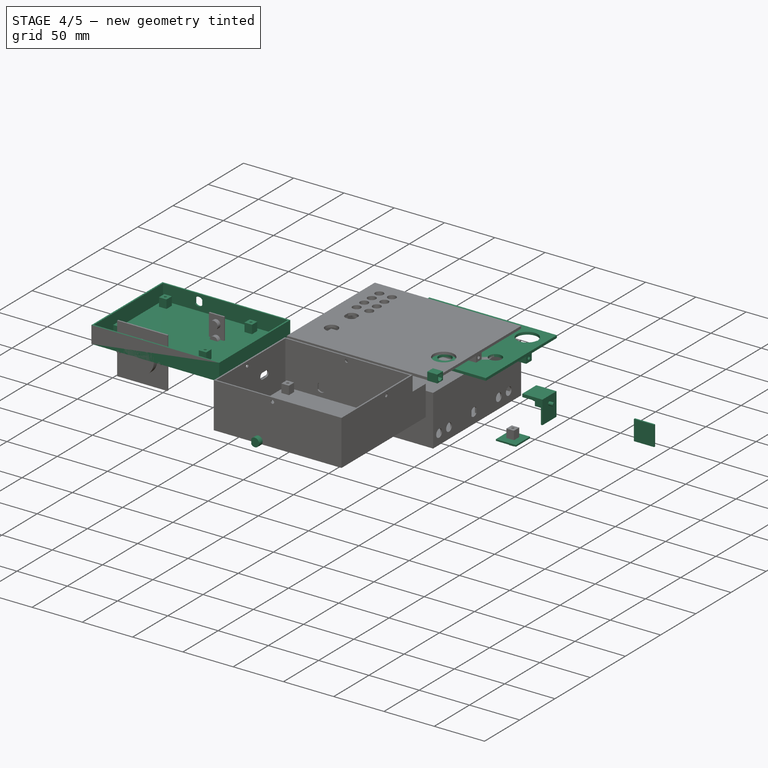
[diagram: stage 4 of 5 — iso view after this stage's code; geometry added in this stage tinted green]
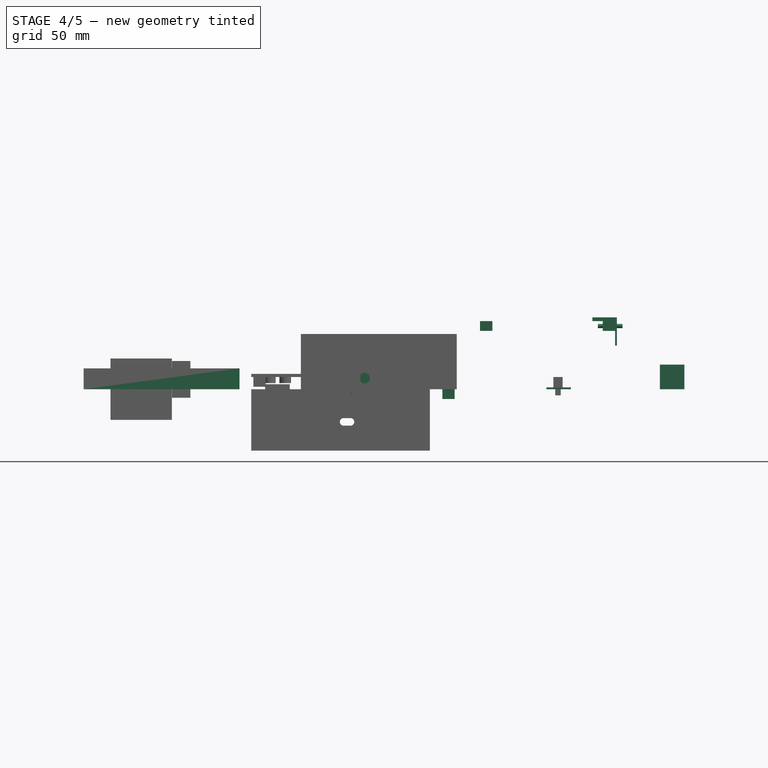
[diagram: stage 4 of 5 — front view after this stage's code; geometry added in this stage tinted green]
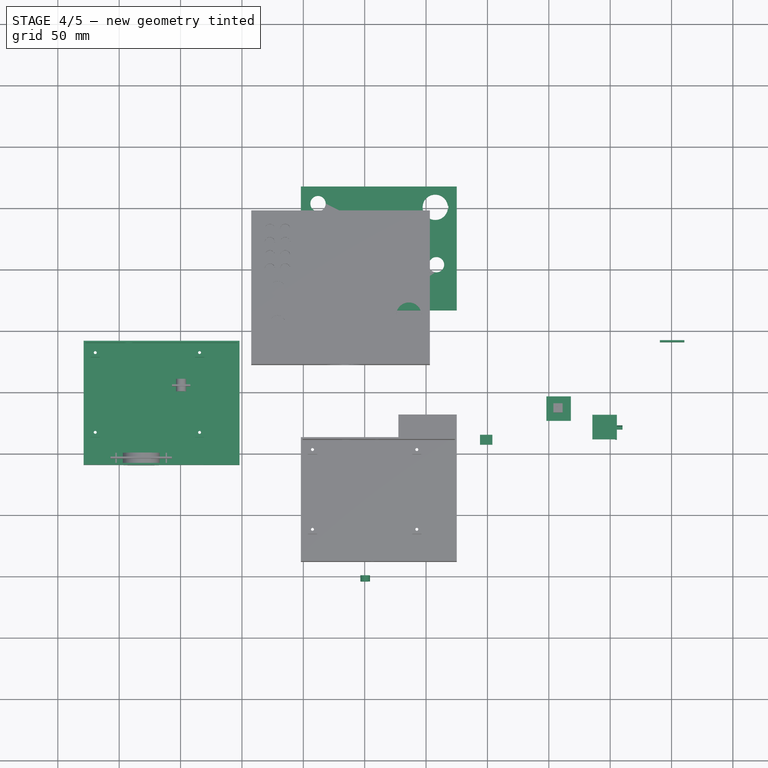
[diagram: stage 4 of 5 — top view after this stage's code; geometry added in this stage tinted green]
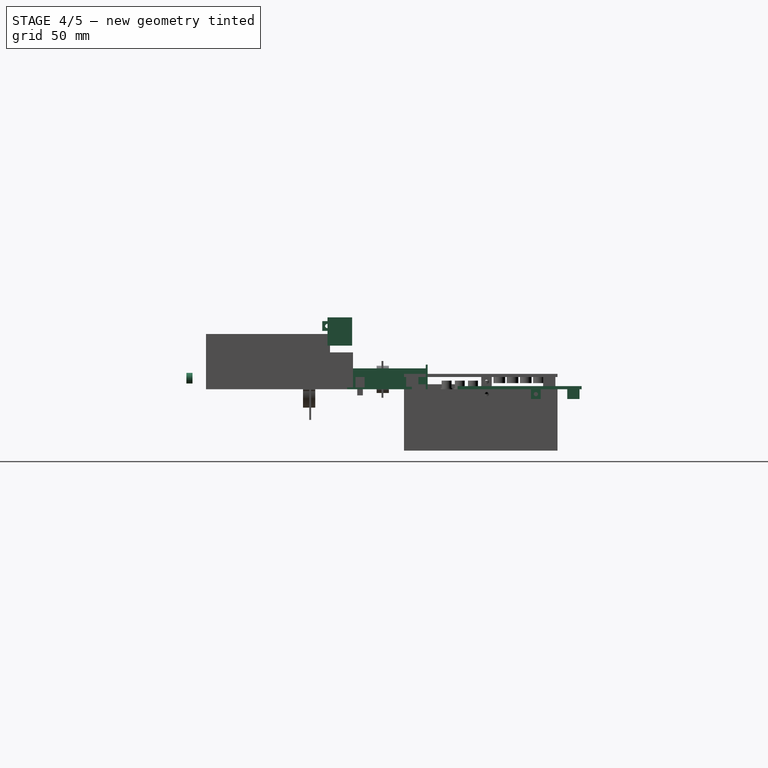
[diagram: stage 4 of 5 — right view after this stage's code; geometry added in this stage tinted green]
FEATURE [Part::Box] Box003  label="Cube003"
  AttacherType = Attacher::AttachEngine3D
  Height = 2.5
  Length = 127
  Placement = pos=(-2,96,0) rot=(0,0,1;0rad)
  Width = 101
FEATURE [Part::Cylinder] Cylinder004  label="PadHole"
  Angle = 360
  AttacherType = Attacher::AttachEngine3D
  Height = 10
  Placement = pos=(75,109.5,-5) rot=(0,0,1;0rad)
  Radius = 6.25
FEATURE [Part::Cylinder] Cylinder005  label="ArmHole"
  Angle = 360
  AttacherType = Attacher::AttachEngine3D
  Height = 10
  Placement = pos=(108.5,133.25,-5) rot=(0,0,1;0rad)
  Radius = 6.25
FEATURE [Part::Box] Box004  label="TimerWindow"
  AttacherType = Attacher::AttachEngine3D
  Height = 10
  Length = 30
  Placement = pos=(56,144.1,-5) rot=(0,0,1;0rad)
  Width = 20
FEATURE [Part::Cylinder] Cylinder006  label="LaunchHole"
  Angle = 360
  AttacherType = Attacher::AttachEngine3D
  Height = 10
  Placement = pos=(12,183,-5) rot=(0,0,1;0rad)
  Radius = 6.25
FEATURE [Part::Cylinder] Cylinder007
  Angle = 360
  AttacherType = Attacher::AttachEngine3D
  Height = 10
  Placement = pos=(85,165,-5) rot=(0,0,1;0rad)
  Radius = 10.3
FEATURE [Part::Box] Box005  label="Cube005"
  AttacherType = Attacher::AttachEngine3D
  Height = 10
  Length = 10
  Placement = pos=(85.7,163.75,-5) rot=(0,0,1;0rad)
  Width = 2.5
FEATURE [Part::MultiFuse] Fusion  label="PowerSw"
  Placement = pos=(22.5,15,0) rot=(0,0,1;0rad)
  Shapes = -> [Cylinder007,Box005]
FEATURE [Part::Cylinder] Cylinder008
  Angle = 360
  AttacherType = Attacher::AttachEngine3D
  Height = 10
  Placement = pos=(9,107,-5) rot=(0,0,1;0rad)
  Radius = 4.1
FEATURE [Part::Cylinder] Cylinder009
  Angle = 360
  AttacherType = Attacher::AttachEngine3D
  Height = 10
  Placement = pos=(15.25,116,-5) rot=(0,0,1;0rad)
  Radius = 4.1
FEATURE [Part::Cylinder] Cylinder010
  Angle = 360
  AttacherType = Attacher::AttachEngine3D
  Height = 10
  Placement = pos=(27.75,116,-5) rot=(0,0,1;0rad)
  Radius = 4.1
FEATURE [Part::Cylinder] Cylinder011
  Angle = 360
  AttacherType = Attacher::AttachEngine3D
  Height = 10
  Placement = pos=(40.25,116,-5) rot=(0,0,1;0rad)
  Radius = 4.1
FEATURE [Part::Cylinder] Cylinder012
  Angle = 360
  AttacherType = Attacher::AttachEngine3D
  Height = 10
  Placement = pos=(46.5,107,-5) rot=(0,0,1;0rad)
  Radius = 4.1
FEATURE [Part::Cylinder] Cylinder013
  Angle = 360
  AttacherType = Attacher::AttachEngine3D
  Height = 10
  Placement = pos=(34,107,-5) rot=(0,0,1;0rad)
  Radius = 4.1
FEATURE [Part::Cylinder] Cylinder014
  Angle = 360
  AttacherType = Attacher::AttachEngine3D
  Height = 10
  Placement = pos=(21.5,107,-5) rot=(0,0,1;0rad)
  Radius = 4.1
FEATURE [Part::Cut] Cut021  label="LaunchSw"
  Base = -> Box003
  Tool = -> Cylinder006
FEATURE [Part::Cut] Cut022
  Base = -> Cut021
  Tool = -> Fusion
FEATURE [Part::Cut] Cut023
  Base = -> Cut022
  Tool = -> Box004
FEATURE [Part::Cut] Cut024
  Base = -> Cut023
  Tool = -> Cylinder005
FEATURE [Part::Cut] Cut025
  Base = -> Cut024
  Tool = -> Cylinder004
FEATURE [Part::Cut] Cut026
  Base = -> Cut025
  Tool = -> Cylinder009
FEATURE [Part::Cut] Cut027
  Base = -> Cut026
  Tool = -> Cylinder010
FEATURE [Part::Cut] Cut028
  Base = -> Cut027
  Tool = -> Cylinder011
FEATURE [Part::Cut] Cut029
  Base = -> Cut028
  Tool = -> Cylinder012
FEATURE [Part::Cut] Cut030
  Base = -> Cut029
  Tool = -> Cylinder013
FEATURE [Part::Cut] Cut031
  Base = -> Cut030
  Tool = -> Cylinder014
FEATURE [Part::Cut] Cut032
  Base = -> Cut031
  Placement = pos=(0,20,0) rot=(0,0,1;0rad)
  Tool = -> Cylinder008
FEATURE [Part::Cylinder] Cylinder030
  Angle = 360
  AttacherType = Attacher::AttachEngine3D
  Height = 5
  Placement = pos=(50,-100,9) rot=(1,0,0;1.5708rad)
  Radius = 4.3
FEATURE [Part::Box] Box040  label="Cube040"
  AttacherType = Attacher::AttachEngine3D
  Height = 10
  Length = 10
  Placement = pos=(36.5,-105,4) rot=(0,0,1;0rad)
  Width = 10
FEATURE [Part::Cut] Cut046
  Base = -> Cylinder030
  Tool = -> Box040
FEATURE [Part::Box] Box041  label="Cube041"
  AttacherType = Attacher::AttachEngine3D
  Height = 20
  Length = 20
  Placement = pos=(290.5,90,0) rot=(0,0,1;0rad)
  Width = 1.5
FEATURE [Part::Box] Box042  label="Cube042"
  AttacherType = Attacher::AttachEngine3D
  Height = 8
  Length = 10
  Placement = pos=(144,5.745,27.5) rot=(0,0,1;0rad)
  Width = 8
FEATURE [Sketcher::SketchObject] Sketch004
  FullyConstrained = false
  Placement = pos=(0,0,75) rot=(0,0,1;0rad)
  sketch-geometry (7):
    g0: LineSegment StartX=-29.6946 StartY=6.8133 StartZ=0 EndX=-28.0007 EndY=9.73835 EndZ=0
    g1: LineSegment StartX=-28.0007 StartY=9.73835 StartZ=0 EndX=-29.687 EndY=12.6678 EndZ=0
    g2: LineSegment StartX=-29.687 StartY=12.6678 StartZ=0 EndX=-33.0671 EndY=12.6722 EndZ=0
    g3: LineSegment StartX=-33.0671 StartY=12.6722 StartZ=0 EndX=-34.7609 EndY=9.74719 EndZ=0
    g4: LineSegment StartX=-34.7609 StartY=9.74719 StartZ=0 EndX=-33.0747 EndY=6.81772 EndZ=0
    g5: LineSegment StartX=-33.0747 StartY=6.81772 StartZ=0 EndX=-29.6946 EndY=6.8133 EndZ=0
    g6: Circle CenterX=-31.3808 CenterY=9.74277 CenterZ=0 NormalX=0 NormalY=0 NormalZ=1 AngleXU=0 Radius=3.38011
  constraints (13):
    c: Coincident(g0,g1)
    c: Coincident(g1,g2)
    c: Coincident(g2,g3)
    c: Coincident(g3,g4)
    c: Coincident(g4,g5)
    c: Coincident(g5,g0)
    c: Equal(g0, g1-g5) x5
    c: PointOnObject(g0,g6)
    c: PointOnObject(g1,g6)
    c: PointOnObject(g2,g6)
    c: PointOnObject(g3,g6)
    c: PointOnObject(g4,g6)
    c: PointOnObject(g5,g6)
FEATURE [Part::Extrusion] Extrude004
  Base = -> Sketch004
  Dir = (0,0,1)
  DirMode = 2
  FaceMakerClass = Part::FaceMakerBullseye
  LengthFwd = 9
  LengthRev = 0
  Placement = pos=(71,0,0) rot=(0,1,0;1.5708rad)
  Solid = true
  Symmetric = false
FEATURE [Part::Cut] Cut049
  Base = -> Box042
  Placement = pos=(0,0,20) rot=(0,0,1;0rad)
  Tool = -> Extrude004
FEATURE [Part::Cylinder] Cylinder031
  Angle = 360
  AttacherType = Attacher::AttachEngine3D
  Height = 20
  Placement = pos=(140,9.74,51.5) rot=(0,1,0;1.5708rad)
  Radius = 1.7
FEATURE [Part::Box] Box043  label="Cube043"
  AttacherType = Attacher::AttachEngine3D
  Height = 3
  Length = 20
  Placement = pos=(235.5,10,55.5) rot=(0,0,1;0rad)
  Width = 20
FEATURE [Part::Compound] Compound005
  Links = -> [Cut049,Cylinder031]
  Placement = pos=(100,10,0) rot=(0,0,1;0rad)
FEATURE [Part::Cut] Cut050
  Base = -> Cut049
  Tool = -> Cylinder031
FEATURE [Part::Box] Box044  label="Cube044"
  AttacherType = Attacher::AttachEngine3D
  Height = 8
  Length = 10
  Placement = pos=(144,5.745,27.5) rot=(0,0,1;0rad)
  Width = 8
FEATURE [Sketcher::SketchObject] Sketch005
  FullyConstrained = false
  Placement = pos=(0,0,75) rot=(0,0,1;0rad)
  sketch-geometry (7):
    g0: LineSegment StartX=-29.6946 StartY=6.8133 StartZ=0 EndX=-28.0007 EndY=9.73835 EndZ=0
    g1: LineSegment StartX=-28.0007 StartY=9.73835 StartZ=0 EndX=-29.687 EndY=12.6678 EndZ=0
    g2: LineSegment StartX=-29.687 StartY=12.6678 StartZ=0 EndX=-33.0671 EndY=12.6722 EndZ=0
    g3: LineSegment StartX=-33.0671 StartY=12.6722 StartZ=0 EndX=-34.7609 EndY=9.74719 EndZ=0
    g4: LineSegment StartX=-34.7609 StartY=9.74719 StartZ=0 EndX=-33.0747 EndY=6.81772 EndZ=0
    g5: LineSegment StartX=-33.0747 StartY=6.81772 StartZ=0 EndX=-29.6946 EndY=6.8133 EndZ=0
    g6: Circle CenterX=-31.3808 CenterY=9.74277 CenterZ=0 NormalX=0 NormalY=0 NormalZ=1 AngleXU=0 Radius=3.38011
  constraints (13):
    c: Coincident(g0,g1)
    c: Coincident(g1,g2)
    c: Coincident(g2,g3)
    c: Coincident(g3,g4)
    c: Coincident(g4,g5)
    c: Coincident(g5,g0)
    c: Equal(g0, g1-g5) x5
    c: PointOnObject(g0,g6)
    c: PointOnObject(g1,g6)
    c: PointOnObject(g2,g6)
    c: PointOnObject(g3,g6)
    c: PointOnObject(g4,g6)
    c: PointOnObject(g5,g6)
FEATURE [Part::Extrusion] Extrude005
  Base = -> Sketch005
  Dir = (0,0,1)
  DirMode = 2
  FaceMakerClass = Part::FaceMakerBullseye
  LengthFwd = 9
  LengthRev = 0
  Placement = pos=(71,0,0) rot=(0,1,0;1.5708rad)
  Solid = true
  Symmetric = false
FEATURE [Part::Cut] Cut052
  Base = -> Box044
  Placement = pos=(0,0,20) rot=(0,0,1;0rad)
  Tool = -> Extrude005
FEATURE [Part::Cylinder] Cylinder032
  Angle = 360
  AttacherType = Attacher::AttachEngine3D
  Height = 20
  Placement = pos=(140,9.74,51.5) rot=(0,1,0;1.5708rad)
  Radius = 1.7
FEATURE [Part::Cut] Cut053
  Base = -> Cut052
  Placement = pos=(398,10,103) rot=(0,1,0;3.14159rad)
  Tool = -> Cylinder032
FEATURE [Part::Box] Box045  label="Cube045"
  AttacherType = Attacher::AttachEngine3D
  Height = 20
  Length = 1.5
  Placement = pos=(254,10,35.5) rot=(0,0,1;0rad)
  Width = 20
FEATURE [Part::Cylinder] Cylinder033
  Angle = 360
  AttacherType = Attacher::AttachEngine3D
  Height = 20
  Placement = pos=(254,19.74,51.5) rot=(0,1,0;1.5708rad)
  Radius = 1.7
FEATURE [Part::Cut] Cut054  label="TestSide Wall"
  Base = -> Box045
  Tool = -> Cylinder033
FEATURE [Part::Cylinder] Cylinder034
  Angle = 360
  AttacherType = Attacher::AttachEngine3D
  Height = 10
  Placement = pos=(7.5,16.5,105) rot=(0,0,1;0rad)
  Radius = 1.2
FEATURE [Part::Box] Box046  label="Cube046"
  AttacherType = Attacher::AttachEngine3D
  Height = 10
  Length = 7.5
  Placement = pos=(3.75,12.75,100) rot=(0,0,1;0rad)
  Width = 7.5
FEATURE [Part::Box] Box047  label="Cube047"
  AttacherType = Attacher::AttachEngine3D
  Height = 10
  Length = 4.5
  Placement = pos=(5.25,14.25,98.5) rot=(0,0,1;0rad)
  Width = 4.5
FEATURE [Part::Cut] Cut055
  Base = -> Box046
  Tool = -> Box047
FEATURE [Part::Cut] Cut056
  Base = -> Cut055
  Placement = pos=(200,20,-100) rot=(0,0,1;0rad)
  Tool = -> Cylinder034
FEATURE [Part::Box] Box048  label="Cube048"
  AttacherType = Attacher::AttachEngine3D
  Height = 1.5
  Length = 20
  Placement = pos=(198,26,0) rot=(0,0,1;0rad)
  Width = 20
FEATURE [Part::Box] Box049  label="Cube049"
  AttacherType = Attacher::AttachEngine3D
  Height = 10
  Length = 4.5
  Placement = pos=(205.25,34.25,-5) rot=(0,0,1;0rad)
  Width = 4.5
FEATURE [Part::Cut] Cut057
  Base = -> Box048
  Tool = -> Box049
FEATURE [Part::FeaturePython] Connect006  label="TestPCBMount"  # WARN: FeaturePython — macro-defined, semantics opaque (R4)
  Objects = -> [Cut056,Cut057]
  Tolerance = 0
FEATURE [Part::Feature] Cut053_solid  label="Lid Fastener"
  Placement = pos=(-130.7,160,-55.5) rot=(0,0,1;0rad)
  shape: bbox 10 x 8 x 8 mm, 14 faces (baked)
FEATURE [Part::Feature] Cut053_solid001  label="Lid Fastener001"
  Placement = pos=(80,-38.7,-55.5) rot=(0,0,1;1.5708rad)
  shape: bbox 8 x 10 x 8 mm, 14 faces (baked)
FEATURE [Part::Feature] Cut053_solid002  label="Lid Fastener002"
  Placement = pos=(36.55,371.7,-55.5) rot=(0,0,-1;1.5708rad)
  shape: bbox 8 x 10 x 8 mm, 14 faces (baked)
FEATURE [Part::Feature] Cut053_solid003  label="Lid Fastener003"
  Placement = pos=(253.7,181.3,-55.5) rot=(0,0,1;3.14159rad)
  shape: bbox 10 x 8 x 8 mm, 14 faces (baked)
FEATURE [Part::MultiFuse] Fusion002  label="TopMountTest"
  Shapes = -> [Box043,Cut053]
FEATURE [Part::MultiFuse] Fusion003  label="TopCover001"
  Shapes = -> [Cut032,Cut053_solid,Cut053_solid001,Cut053_solid002,Cut053_solid003]
FEATURE [Part::Feature] Cut061_solid  label="Cut061 (Solid)"
  Placement = pos=(-177,0,0) rot=(0,0,1;0rad)
  shape: bbox 127 x 101 x 40 mm, 83 faces (baked)
FEATURE [Part::Box] Box052  label="Cube052"
  AttacherType = Attacher::AttachEngine3D
  Height = 30
  Length = 180
  Placement = pos=(-210,-80,17) rot=(0,0,1;0rad)
  Width = 180
FEATURE [Part::Cut] Cut063  label="BottomBoxTest"
  Base = -> Cut061_solid
  Tool = -> Box052
FEATURE [Part::Cylinder] Cylinder041
  Angle = 360
  AttacherType = Attacher::AttachEngine3D
  Height = 20
  Placement = pos=(9,107,-8) rot=(0,0,1;0rad)
  Radius = 4.1
FEATURE [Part::Cylinder] Cylinder042
  Angle = 360
  AttacherType = Attacher::AttachEngine3D
  Height = 5
  Placement = pos=(9,107,0) rot=(0,0,1;0rad)
  Radius = 4.8
FEATURE [Part::Cut] Cut066  label="LEDRing001"
  Base = -> Cylinder042
  Placement = pos=(12.5,20,-4) rot=(0,0,1;0rad)
  Tool = -> Cylinder041
FEATURE [Part::Cut] Cut067  label="LEDRing002"
  Base = -> Cylinder044
  Placement = pos=(25,20,-4) rot=(0,0,1;0rad)
  Tool = -> Cylinder043
FEATURE [Part::MultiFuse] Fusion005  label="ControlLid"
  Shapes = -> [Fusion003,Cut065,Cut066,Cut067,Cut068,Cut069,Cut070,Cut071]
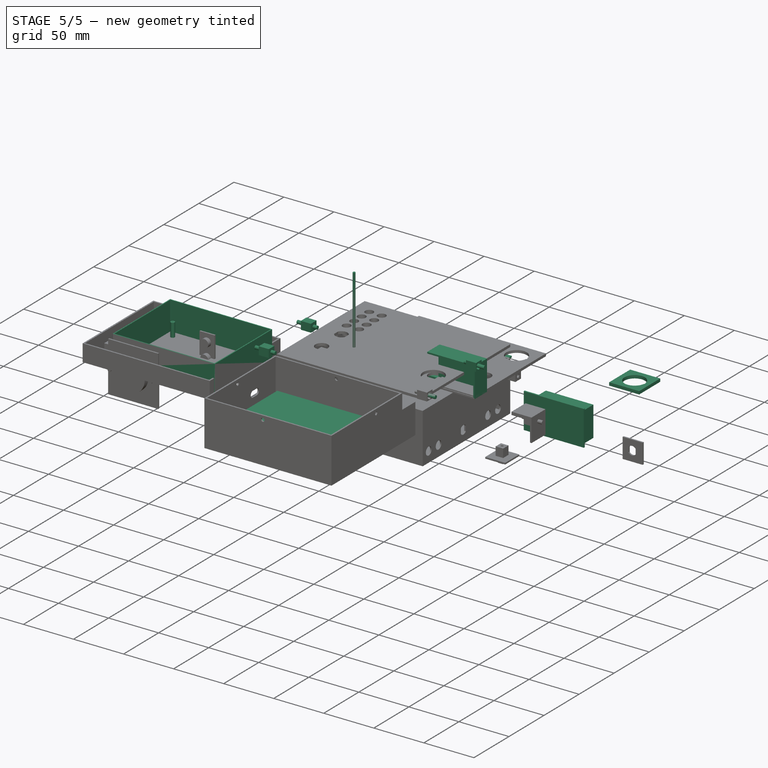
[diagram: stage 5 of 5 — iso view after this stage's code; geometry added in this stage tinted green]
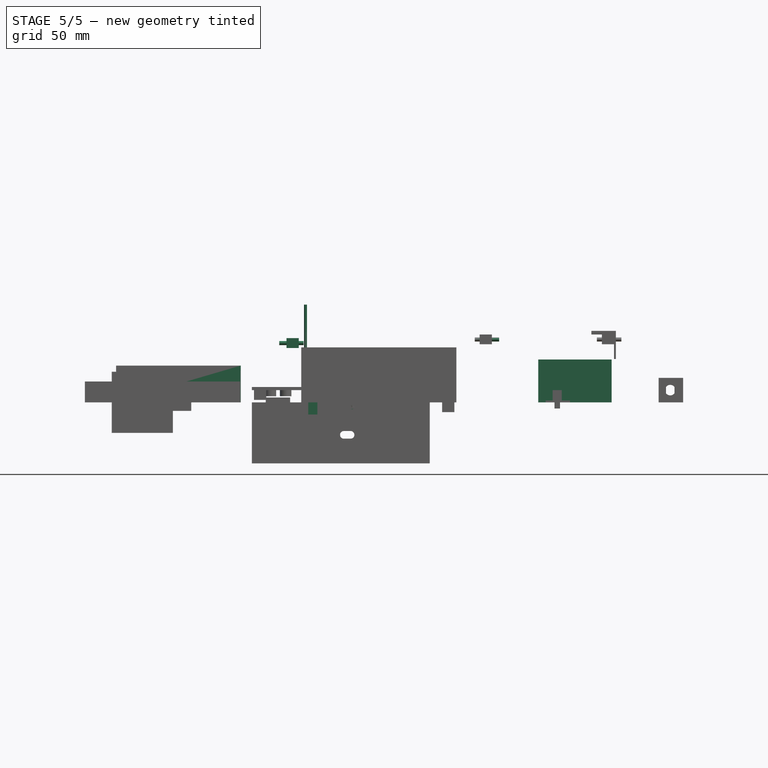
[diagram: stage 5 of 5 — front view after this stage's code; geometry added in this stage tinted green]
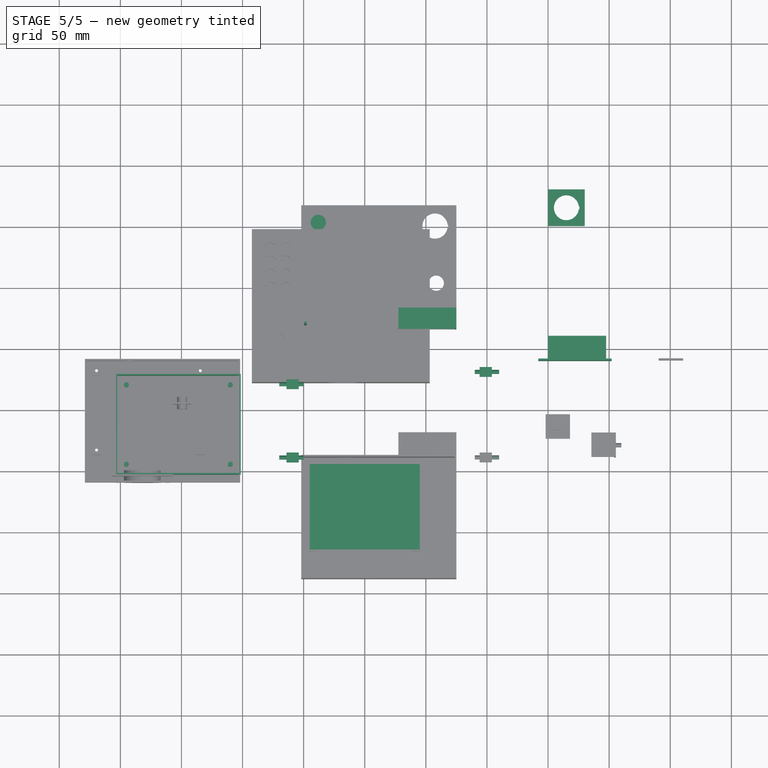
[diagram: stage 5 of 5 — top view after this stage's code; geometry added in this stage tinted green]
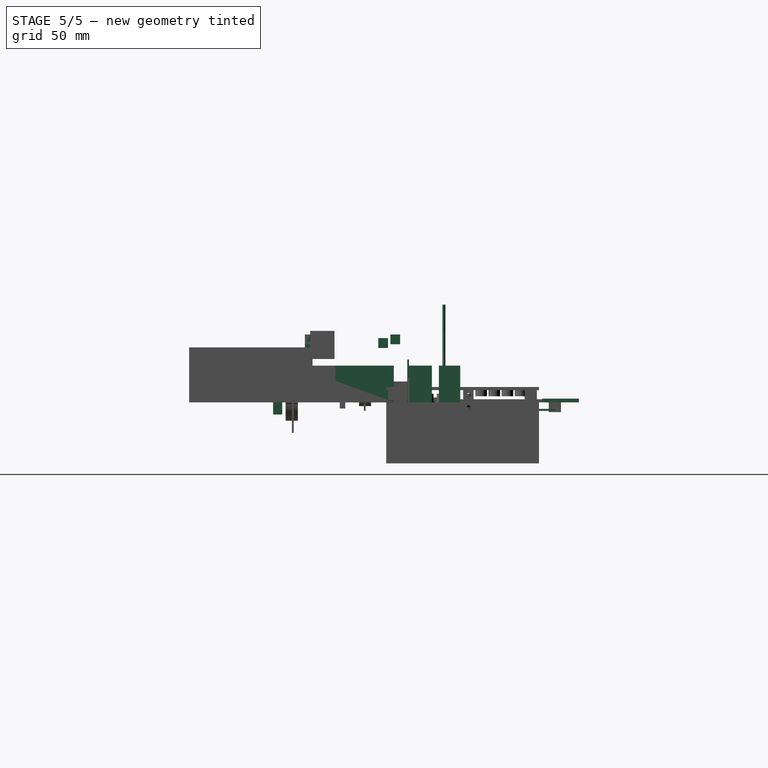
[diagram: stage 5 of 5 — right view after this stage's code; geometry added in this stage tinted green]
FEATURE [Part::Box] Box  label="Cube"
  AttacherType = Attacher::AttachEngine3D
  Height = 50
  Length = 102
  Width = 82
FEATURE [Part::Box] Box001  label="Cube001"
  AttacherType = Attacher::AttachEngine3D
  Height = 50
  Length = 100
  Placement = pos=(1,1,1) rot=(0,0,1;0rad)
  Width = 80
FEATURE [Part::Cut] Cut
  Base = -> Box
  Tool = -> Box001
FEATURE [Part::Fillet] Fillet
  Base = -> Cut
  Edges = 24 edges r=0.25: [Edge1,Edge2,Edge3,Edge4,Edge5,Edge6,Edge7,Edge8,Edge9,Edge10,Edge11,Edge12,Edge13,Edge14,Edge15,Edge16,Edge17,Edge18,Edge19,Edge20,Edge21,Edge22,Edge23,Edge24]
  Placement = pos=(-3.5,-3.5,0) rot=(0,0,1;0rad)
FEATURE [Part::Cylinder] Cylinder
  Angle = 360
  AttacherType = Attacher::AttachEngine3D
  Height = 15
  Placement = pos=(-20,0,0) rot=(0,0,1;0rad)
  Radius = 2
FEATURE [Part::FeaturePython] ThreadedRod  label="M2x10.0-ThreadedRod"  # Fasteners workbench fastener (typed FeaturePython)
  Placement = pos=(-20,0,16) rot=(0,0,1;0rad)
  diameter = 2
  invert = false
  length = 10
  matchOuter = false
  offset = 0
  thread = true
FEATURE [Part::Cut] Cut001  label="M2_Post"
  Base = -> Cylinder
  Placement = pos=(25,5,0) rot=(0,0,1;0rad)
  Tool = -> ThreadedRod
FEATURE [Part::Cylinder] Cylinder001
  Angle = 360
  AttacherType = Attacher::AttachEngine3D
  Height = 15
  Placement = pos=(-20,0,0) rot=(0,0,1;0rad)
  Radius = 2
FEATURE [Part::FeaturePython] ThreadedRod001  label="M2x10.0-ThreadedRod001"  # Fasteners workbench fastener (typed FeaturePython)
  Placement = pos=(-20,0,16) rot=(0,0,1;0rad)
  diameter = 2
  invert = false
  length = 10
  matchOuter = false
  offset = 0
  thread = true
FEATURE [Part::Cut] Cut002  label="M2_Post001"
  Base = -> Cylinder001
  Placement = pos=(110,5,0) rot=(0,0,1;0rad)
  Tool = -> ThreadedRod001
FEATURE [Part::Cylinder] Cylinder002
  Angle = 360
  AttacherType = Attacher::AttachEngine3D
  Height = 15
  Placement = pos=(-20,0,0) rot=(0,0,1;0rad)
  Radius = 2
FEATURE [Part::FeaturePython] ThreadedRod002  label="M2x10.0-ThreadedRod002"  # Fasteners workbench fastener (typed FeaturePython)
  Placement = pos=(-20,0,16) rot=(0,0,1;0rad)
  diameter = 2
  invert = false
  length = 10
  matchOuter = false
  offset = 0
  thread = true
FEATURE [Part::Cut] Cut003  label="M2_Post002"
  Base = -> Cylinder002
  Placement = pos=(110,70,0) rot=(0,0,1;0rad)
  Tool = -> ThreadedRod002
FEATURE [Part::Cylinder] Cylinder003
  Angle = 360
  AttacherType = Attacher::AttachEngine3D
  Height = 15
  Placement = pos=(-20,0,0) rot=(0,0,1;0rad)
  Radius = 2
FEATURE [Part::FeaturePython] ThreadedRod003  label="M2x10.0-ThreadedRod003"  # Fasteners workbench fastener (typed FeaturePython)
  Placement = pos=(-20,0,16) rot=(0,0,1;0rad)
  diameter = 2
  invert = false
  length = 10
  matchOuter = false
  offset = 0
  thread = true
FEATURE [Part::Cut] Cut004  label="M2_Post003"
  Base = -> Cylinder003
  Placement = pos=(25,70,0) rot=(0,0,1;0rad)
  Tool = -> ThreadedRod003
FEATURE [Part::Box] Box002  label="Cube002"
  AttacherType = Attacher::AttachEngine3D
  Height = 20
  Length = 110
  Placement = pos=(-10,-10,30) rot=(0,0,1;0rad)
  Width = 100
FEATURE [Part::Cut] Cut005  label="Box"
  Base = -> Fillet
  Tool = -> Box002
FEATURE [Part::Compound] Compound
  Links = -> [Cut005,Cut001,Cut002,Cut003,Cut004]
  Placement = pos=(-150,0,0) rot=(0,0,1;0rad)
FEATURE [Part::Box] Box007  label="Cube007"
  AttacherType = Attacher::AttachEngine3D
  Height = 1.6
  Length = 90
  Placement = pos=(5,141,-7) rot=(0,0,1;0rad)
  Width = 70
FEATURE [Part::Box] Box011  label="Card"
  AttacherType = Attacher::AttachEngine3D
  Height = 1.6
  Length = 90
  Placement = pos=(5,-65,16.1) rot=(0,0,1;0rad)
  Width = 70
FEATURE [Part::Cylinder] Cylinder017
  Angle = 360
  AttacherType = Attacher::AttachEngine3D
  Height = 100
  Placement = pos=(1.5,119.5,-20) rot=(0,0,1;0rad)
  Radius = 1.2
FEATURE [Part::Box] Box026  label="Cube026"
  AttacherType = Attacher::AttachEngine3D
  Height = 27
  Length = 47.5
  Placement = pos=(-1.5,0,60) rot=(0,0,1;0rad)
  Width = 16
FEATURE [Part::Box] Box027  label="Cube027"
  AttacherType = Attacher::AttachEngine3D
  Height = 30
  Length = 47.5
  Placement = pos=(0,0,58.5) rot=(0,0,1;0rad)
  Width = 17.5
FEATURE [Part::Cut] Cut035
  Base = -> Box027
  Placement = pos=(77.5,115.4,-58.5) rot=(0,0,1;0rad)
  Tool = -> Box026
FEATURE [Part::Box] Box028  label="Cube028"
  AttacherType = Attacher::AttachEngine3D
  Height = 10
  Length = 7.5
  Placement = pos=(3.75,12.75,100) rot=(0,0,1;0rad)
  Width = 7.5
FEATURE [Part::Cylinder] Cylinder024
  Angle = 360
  AttacherType = Attacher::AttachEngine3D
  Height = 10
  Placement = pos=(7.5,16.5,105) rot=(0,0,1;0rad)
  Radius = 1.2
FEATURE [Part::Box] Box029  label="Cube029"
  AttacherType = Attacher::AttachEngine3D
  Height = 10
  Length = 4.5
  Placement = pos=(5.25,14.25,98.5) rot=(0,0,1;0rad)
  Width = 4.5
FEATURE [Part::Cut] Cut038
  Base = -> Box028
  Tool = -> Box029
FEATURE [Part::Cut] Cut037
  Base = -> Cut038
  Placement = pos=(0,0,100) rot=(1,0,0;3.14159rad)
  Tool = -> Cylinder024
FEATURE [Sketcher::SketchObject] Sketch
  FullyConstrained = false
  Placement = pos=(0,0,75) rot=(0,0,1;0rad)
  sketch-geometry (7):
    g0: LineSegment StartX=-29.6946 StartY=6.8133 StartZ=0 EndX=-28.0007 EndY=9.73835 EndZ=0
    g1: LineSegment StartX=-28.0007 StartY=9.73835 StartZ=0 EndX=-29.687 EndY=12.6678 EndZ=0
    g2: LineSegment StartX=-29.687 StartY=12.6678 StartZ=0 EndX=-33.0671 EndY=12.6722 EndZ=0
    g3: LineSegment StartX=-33.0671 StartY=12.6722 StartZ=0 EndX=-34.7609 EndY=9.74719 EndZ=0
    g4: LineSegment StartX=-34.7609 StartY=9.74719 StartZ=0 EndX=-33.0747 EndY=6.81772 EndZ=0
    g5: LineSegment StartX=-33.0747 StartY=6.81772 StartZ=0 EndX=-29.6946 EndY=6.8133 EndZ=0
    g6: Circle CenterX=-31.3808 CenterY=9.74277 CenterZ=0 NormalX=0 NormalY=0 NormalZ=1 AngleXU=0 Radius=3.38011
  constraints (13):
    c: Coincident(g0,g1)
    c: Coincident(g1,g2)
    c: Coincident(g2,g3)
    c: Coincident(g3,g4)
    c: Coincident(g4,g5)
    c: Coincident(g5,g0)
    c: Equal(g0, g1-g5) x5
    c: PointOnObject(g0,g6)
    c: PointOnObject(g1,g6)
    c: PointOnObject(g2,g6)
    c: PointOnObject(g3,g6)
    c: PointOnObject(g4,g6)
    c: PointOnObject(g5,g6)
FEATURE [Part::Extrusion] Extrude
  Base = -> Sketch
  Dir = (0,0,1)
  DirMode = 2
  FaceMakerClass = Part::FaceMakerBullseye
  LengthFwd = 9
  LengthRev = 0
  Placement = pos=(71,0,0) rot=(0,1,0;1.5708rad)
  Solid = true
  Symmetric = false
FEATURE [Part::Box] Box030  label="Cube030"
  AttacherType = Attacher::AttachEngine3D
  Height = 8
  Length = 10
  Placement = pos=(144,5.745,27.5) rot=(0,0,1;0rad)
  Width = 8
FEATURE [Part::Cut] Cut039
  Base = -> Box030
  Placement = pos=(0,0,20) rot=(0,0,1;0rad)
  Tool = -> Extrude
FEATURE [Part::Cylinder] Cylinder025
  Angle = 360
  AttacherType = Attacher::AttachEngine3D
  Height = 20
  Placement = pos=(140,9.74,51.5) rot=(0,1,0;1.5708rad)
  Radius = 1.7
FEATURE [Part::Compound] Compound001
  Links = -> [Cut039,Cylinder025]
FEATURE [Part::Box] Box031  label="Cube031"
  AttacherType = Attacher::AttachEngine3D
  Height = 8
  Length = 10
  Placement = pos=(144,5.745,27.5) rot=(0,0,1;0rad)
  Width = 8
FEATURE [Sketcher::SketchObject] Sketch001
  FullyConstrained = false
  Placement = pos=(0,0,75) rot=(0,0,1;0rad)
  sketch-geometry (7):
    g0: LineSegment StartX=-29.6946 StartY=6.8133 StartZ=0 EndX=-28.0007 EndY=9.73835 EndZ=0
    g1: LineSegment StartX=-28.0007 StartY=9.73835 StartZ=0 EndX=-29.687 EndY=12.6678 EndZ=0
    g2: LineSegment StartX=-29.687 StartY=12.6678 StartZ=0 EndX=-33.0671 EndY=12.6722 EndZ=0
    g3: LineSegment StartX=-33.0671 StartY=12.6722 StartZ=0 EndX=-34.7609 EndY=9.74719 EndZ=0
    g4: LineSegment StartX=-34.7609 StartY=9.74719 StartZ=0 EndX=-33.0747 EndY=6.81772 EndZ=0
    g5: LineSegment StartX=-33.0747 StartY=6.81772 StartZ=0 EndX=-29.6946 EndY=6.8133 EndZ=0
    g6: Circle CenterX=-31.3808 CenterY=9.74277 CenterZ=0 NormalX=0 NormalY=0 NormalZ=1 AngleXU=0 Radius=3.38011
  constraints (13):
    c: Coincident(g0,g1)
    c: Coincident(g1,g2)
    c: Coincident(g2,g3)
    c: Coincident(g3,g4)
    c: Coincident(g4,g5)
    c: Coincident(g5,g0)
    c: Equal(g0, g1-g5) x5
    c: PointOnObject(g0,g6)
    c: PointOnObject(g1,g6)
    c: PointOnObject(g2,g6)
    c: PointOnObject(g3,g6)
    c: PointOnObject(g4,g6)
    c: PointOnObject(g5,g6)
FEATURE [Part::Extrusion] Extrude001
  Base = -> Sketch001
  Dir = (0,0,1)
  DirMode = 2
  FaceMakerClass = Part::FaceMakerBullseye
  LengthFwd = 9
  LengthRev = 0
  Placement = pos=(71,0,0) rot=(0,1,0;1.5708rad)
  Solid = true
  Symmetric = false
FEATURE [Part::Cut] Cut040
  Base = -> Box031
  Placement = pos=(0,0,20) rot=(0,0,1;0rad)
  Tool = -> Extrude001
FEATURE [Part::Cylinder] Cylinder026
  Angle = 360
  AttacherType = Attacher::AttachEngine3D
  Height = 20
  Placement = pos=(140,9.74,51.5) rot=(0,1,0;1.5708rad)
  Radius = 1.7
FEATURE [Part::Compound] Compound002
  Links = -> [Cut040,Cylinder026]
  Placement = pos=(0,70,0) rot=(0,0,1;0rad)
FEATURE [Part::Box] Box032  label="Cube032"
  AttacherType = Attacher::AttachEngine3D
  Height = 8
  Length = 10
  Placement = pos=(144,5.745,27.5) rot=(0,0,1;0rad)
  Width = 8
FEATURE [Sketcher::SketchObject] Sketch002
  FullyConstrained = false
  Placement = pos=(0,0,75) rot=(0,0,1;0rad)
  sketch-geometry (7):
    g0: LineSegment StartX=-29.6946 StartY=6.8133 StartZ=0 EndX=-28.0007 EndY=9.73835 EndZ=0
    g1: LineSegment StartX=-28.0007 StartY=9.73835 StartZ=0 EndX=-29.687 EndY=12.6678 EndZ=0
    g2: LineSegment StartX=-29.687 StartY=12.6678 StartZ=0 EndX=-33.0671 EndY=12.6722 EndZ=0
    g3: LineSegment StartX=-33.0671 StartY=12.6722 StartZ=0 EndX=-34.7609 EndY=9.74719 EndZ=0
    g4: LineSegment StartX=-34.7609 StartY=9.74719 StartZ=0 EndX=-33.0747 EndY=6.81772 EndZ=0
    g5: LineSegment StartX=-33.0747 StartY=6.81772 StartZ=0 EndX=-29.6946 EndY=6.8133 EndZ=0
    g6: Circle CenterX=-31.3808 CenterY=9.74277 CenterZ=0 NormalX=0 NormalY=0 NormalZ=1 AngleXU=0 Radius=3.38011
  constraints (13):
    c: Coincident(g0,g1)
    c: Coincident(g1,g2)
    c: Coincident(g2,g3)
    c: Coincident(g3,g4)
    c: Coincident(g4,g5)
    c: Coincident(g5,g0)
    c: Equal(g0, g1-g5) x5
    c: PointOnObject(g0,g6)
    c: PointOnObject(g1,g6)
    c: PointOnObject(g2,g6)
    c: PointOnObject(g3,g6)
    c: PointOnObject(g4,g6)
    c: PointOnObject(g5,g6)
FEATURE [Part::Extrusion] Extrude002
  Base = -> Sketch002
  Dir = (0,0,1)
  DirMode = 2
  FaceMakerClass = Part::FaceMakerBullseye
  LengthFwd = 9
  LengthRev = 0
  Placement = pos=(71,0,0) rot=(0,1,0;1.5708rad)
  Solid = true
  Symmetric = false
FEATURE [Part::Cut] Cut041
  Base = -> Box032
  Placement = pos=(0,0,20) rot=(0,0,1;0rad)
  Tool = -> Extrude002
FEATURE [Part::Cylinder] Cylinder027
  Angle = 360
  AttacherType = Attacher::AttachEngine3D
  Height = 20
  Placement = pos=(140,9.74,51.5) rot=(0,1,0;1.5708rad)
  Radius = 1.7
FEATURE [Part::Compound] Compound003
  Links = -> [Cut041,Cylinder027]
  Placement = pos=(140,60,100) rot=(0,1,0;3.14159rad)
FEATURE [Part::Cylinder] Cylinder028
  Angle = 360
  AttacherType = Attacher::AttachEngine3D
  Height = 20
  Placement = pos=(140,9.74,51.5) rot=(0,1,0;1.5708rad)
  Radius = 1.7
FEATURE [Sketcher::SketchObject] Sketch003
  FullyConstrained = false
  Placement = pos=(0,0,75) rot=(0,0,1;0rad)
  sketch-geometry (7):
    g0: LineSegment StartX=-29.6946 StartY=6.8133 StartZ=0 EndX=-28.0007 EndY=9.73835 EndZ=0
    g1: LineSegment StartX=-28.0007 StartY=9.73835 StartZ=0 EndX=-29.687 EndY=12.6678 EndZ=0
    g2: LineSegment StartX=-29.687 StartY=12.6678 StartZ=0 EndX=-33.0671 EndY=12.6722 EndZ=0
    g3: LineSegment StartX=-33.0671 StartY=12.6722 StartZ=0 EndX=-34.7609 EndY=9.74719 EndZ=0
    g4: LineSegment StartX=-34.7609 StartY=9.74719 StartZ=0 EndX=-33.0747 EndY=6.81772 EndZ=0
    g5: LineSegment StartX=-33.0747 StartY=6.81772 StartZ=0 EndX=-29.6946 EndY=6.8133 EndZ=0
    g6: Circle CenterX=-31.3808 CenterY=9.74277 CenterZ=0 NormalX=0 NormalY=0 NormalZ=1 AngleXU=0 Radius=3.38011
  constraints (13):
    c: Coincident(g0,g1)
    c: Coincident(g1,g2)
    c: Coincident(g2,g3)
    c: Coincident(g3,g4)
    c: Coincident(g4,g5)
    c: Coincident(g5,g0)
    c: Equal(g0, g1-g5) x5
    c: PointOnObject(g0,g6)
    c: PointOnObject(g1,g6)
    c: PointOnObject(g2,g6)
    c: PointOnObject(g3,g6)
    c: PointOnObject(g4,g6)
    c: PointOnObject(g5,g6)
FEATURE [Part::Extrusion] Extrude003
  Base = -> Sketch003
  Dir = (0,0,1)
  DirMode = 2
  FaceMakerClass = Part::FaceMakerBullseye
  LengthFwd = 9
  LengthRev = 0
  Placement = pos=(71,0,0) rot=(0,1,0;1.5708rad)
  Solid = true
  Symmetric = false
FEATURE [Part::Box] Box033  label="Cube033"
  AttacherType = Attacher::AttachEngine3D
  Height = 8
  Length = 10
  Placement = pos=(144,5.745,27.5) rot=(0,0,1;0rad)
  Width = 8
FEATURE [Part::Cut] Cut042
  Base = -> Box033
  Placement = pos=(0,0,20) rot=(0,0,1;0rad)
  Tool = -> Extrude003
FEATURE [Part::Compound] Compound004
  Links = -> [Cut042,Cylinder028]
  Placement = pos=(140,0,100) rot=(0,1,0;3.14159rad)
FEATURE [Part::Cylinder] Cylinder029
  Angle = 360
  AttacherType = Attacher::AttachEngine3D
  Height = 10
  Placement = pos=(85,165,-5) rot=(0,0,1;0rad)
  Radius = 10.2
FEATURE [Part::Box] Box034  label="Cube034"
  AttacherType = Attacher::AttachEngine3D
  Height = 10
  Length = 10
  Placement = pos=(85.6,163.75,-5) rot=(0,0,1;0rad)
  Width = 2.5
FEATURE [Part::MultiFuse] Fusion001  label="PowerSw001"
  Placement = pos=(130,50,0) rot=(0,0,1;0rad)
  Shapes = -> [Cylinder029,Box034]
FEATURE [Part::Box] Box035  label="Cube035"
  AttacherType = Attacher::AttachEngine3D
  Height = 3
  Length = 30
  Placement = pos=(200,200,0) rot=(0,0,1;0rad)
  Width = 30
FEATURE [Part::Cut] Cut044  label="PowerSwTest"
  Base = -> Box035
  Tool = -> Fusion001
FEATURE [Part::Box] Box036  label="Cube036"
  AttacherType = Attacher::AttachEngine3D
  Height = 30
  Length = 47.5
  Placement = pos=(0,0,58.5) rot=(0,0,1;0rad)
  Width = 18.7
FEATURE [Part::Box] Box037  label="Cube037"
  AttacherType = Attacher::AttachEngine3D
  Height = 27
  Length = 47.5
  Placement = pos=(-1.5,0,60) rot=(0,0,1;0rad)
  Width = 17.2
FEATURE [Part::Cut] Cut045
  Base = -> Box036
  Placement = pos=(200,91,-58.5) rot=(0,0,1;0rad)
  Tool = -> Box037
FEATURE [Part::Box] Box038  label="Cube038"
  AttacherType = Attacher::AttachEngine3D
  Height = 35
  Length = 60
  Placement = pos=(192,89.5,0) rot=(0,0,1;0rad)
  Width = 1.5
FEATURE [Part::FeaturePython] Connect004  label="BatteryHolderTest"  # WARN: FeaturePython — macro-defined, semantics opaque (R4)
  Objects = -> [Cut045,Box038]
  Tolerance = 0
FEATURE [Part::Box] Box039  label="Cube039"
  AttacherType = Attacher::AttachEngine3D
  Height = 10
  Length = 10
  Placement = pos=(53.5,-105,4) rot=(0,0,1;0rad)
  Width = 10
FEATURE [Part::Cut] Cut047
  Base = -> Cut046
  Placement = pos=(250,193,1) rot=(0,0,1;0rad)
  Tool = -> Box039
FEATURE [Part::Cut] Cut048  label="PowerConnecterTest"
  Base = -> Box041
  Tool = -> Cut047
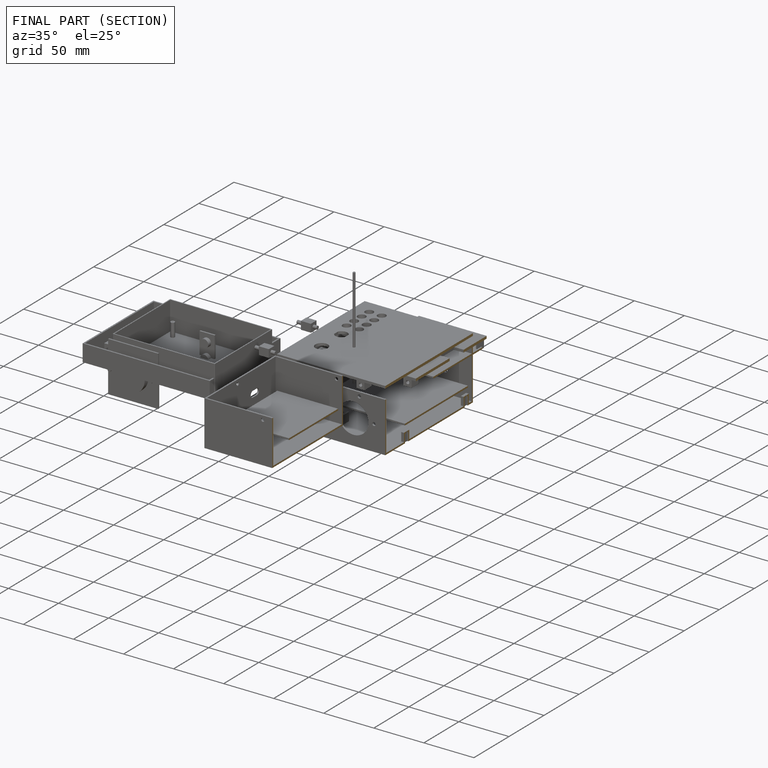
[diagram: finished part — half-section view (interior)]
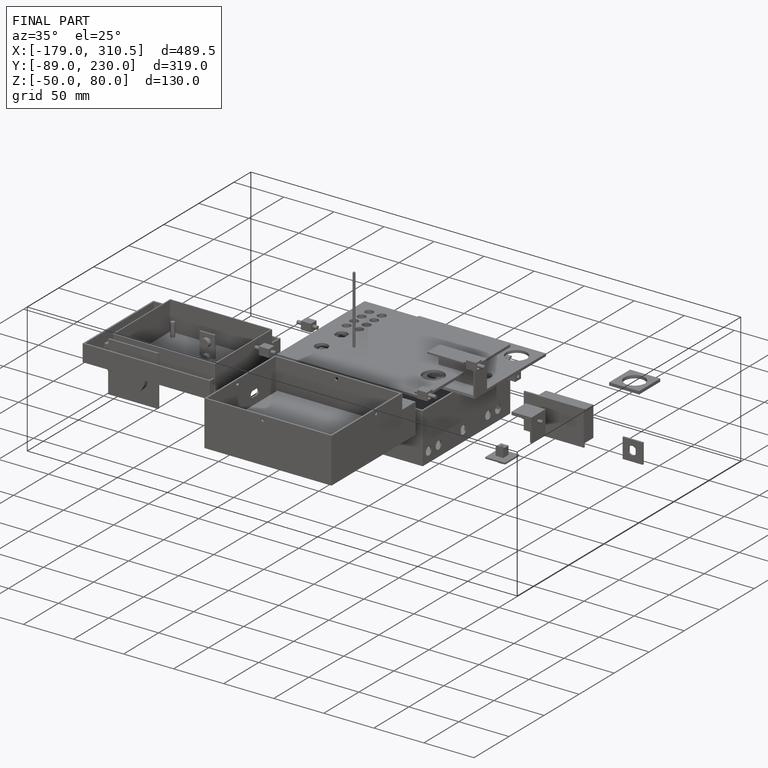
[diagram: finished part — iso view with bounding-box wireframe]
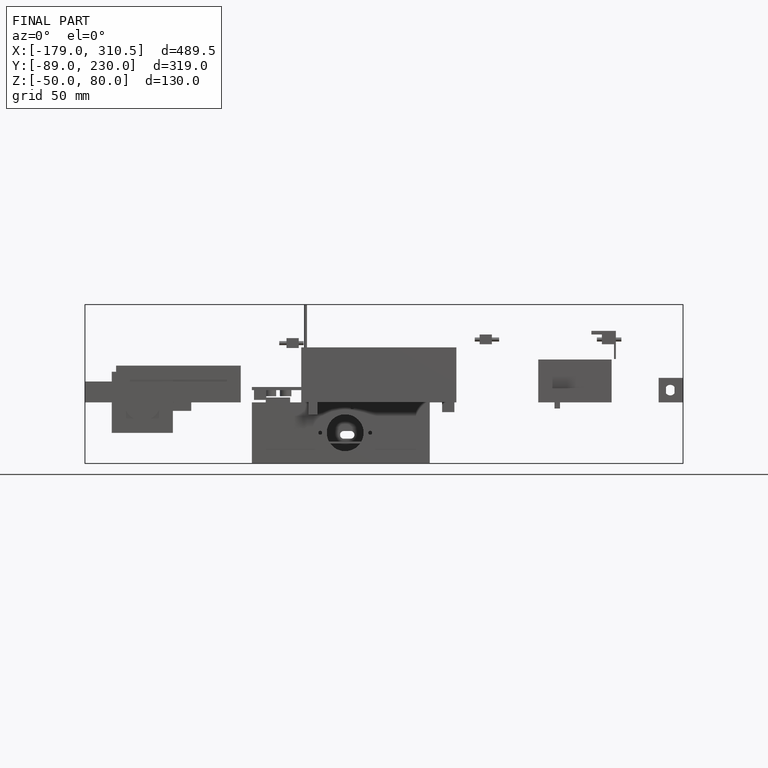
[diagram: finished part — front view with bounding-box wireframe]
